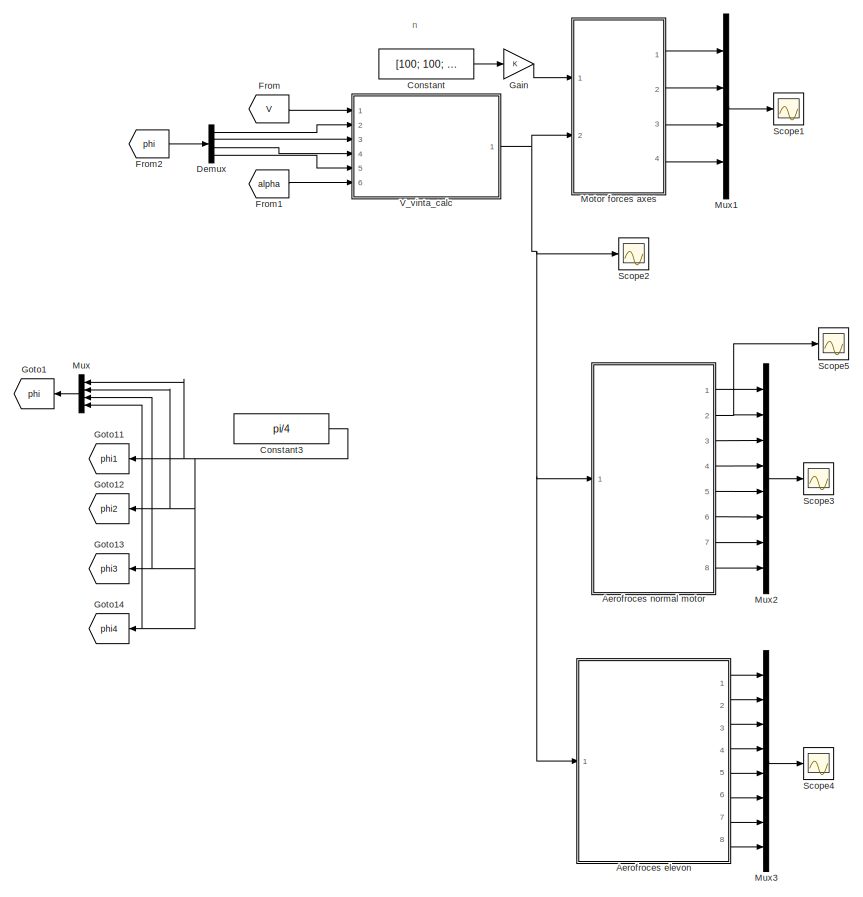
[diagram: root canvas - part 1/2, left side, full height]
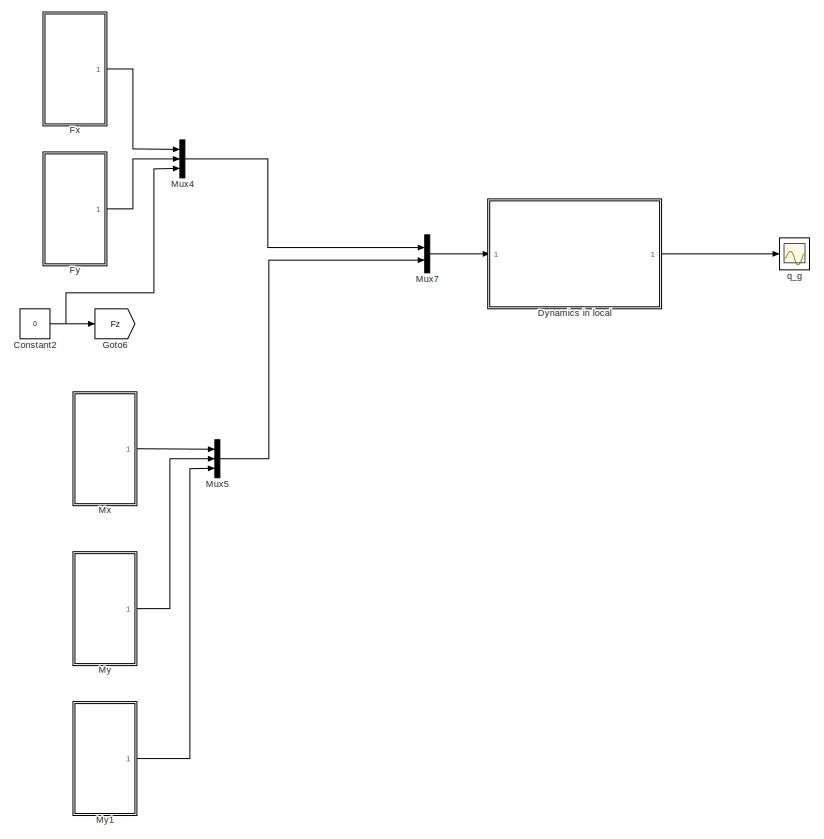
[diagram: root canvas - part 2/2, right side, full height]
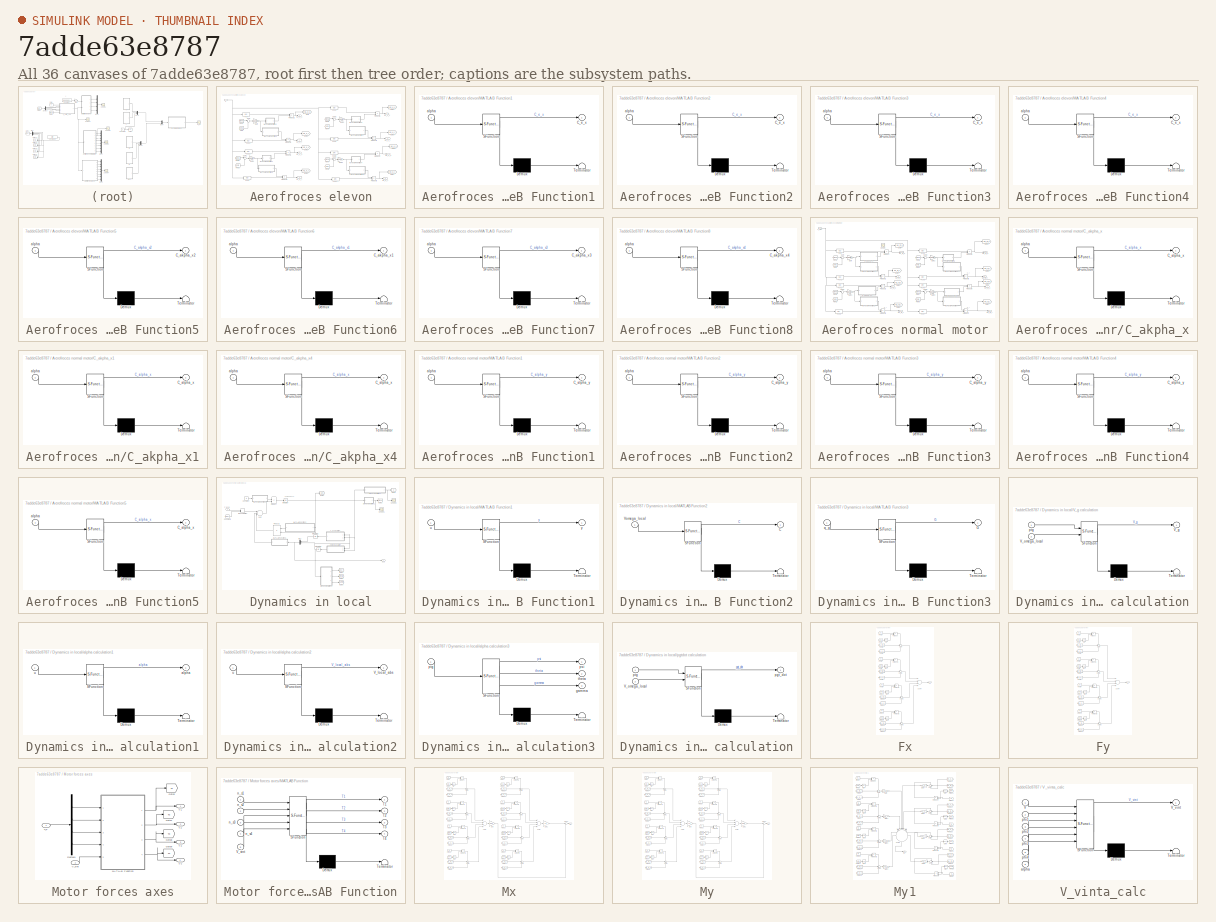
[diagram: thumbnail index - all 36 canvases of the model, root first then tree order]
MODEL slx_7adde63e8787
KIND model
CONFIG AbsTol = auto
CONFIG EnableMultiTasking = off
CONFIG FixedStep = auto
CONFIG MaxStep = auto
CONFIG MinStep = auto
CONFIG RelTol = 1e-3
CONFIG SampleTimeConstraint = Unconstrained
CONFIG Solver = ode45
CONFIG SolverName = ode45
CONFIG StartTime = 0.0
CONFIG StopTime = 10
BLOCK [SubSystem] Aerofroces elevon
  Ports = [1, 8]
  RequestExecContextInheritance = off
  Variant = off
BLOCK [Fcn] Aerofroces elevon/Fcn
  Expr = u(1)
BLOCK [Fcn] Aerofroces elevon/Fcn1
  Expr = u(1)
BLOCK [Fcn] Aerofroces elevon/Fcn2
  Expr = u(2)
BLOCK [Fcn] Aerofroces elevon/Fcn3
  Expr = u(2)
BLOCK [Fcn] Aerofroces elevon/Fcn4
  Expr = u(3)
BLOCK [Fcn] Aerofroces elevon/Fcn5
  Expr = u(3)
BLOCK [Fcn] Aerofroces elevon/Fcn6
  Expr = u(4)
BLOCK [Fcn] Aerofroces elevon/Fcn7
  Expr = u(4)
BLOCK [From] Aerofroces elevon/From
  GotoTag = phi1
  TagVisibility = global
BLOCK [From] Aerofroces elevon/From1
  GotoTag = phi2
  TagVisibility = global
BLOCK [From] Aerofroces elevon/From2
  GotoTag = alpha
  TagVisibility = global
BLOCK [From] Aerofroces elevon/From3
  GotoTag = alpha
  TagVisibility = global
BLOCK [From] Aerofroces elevon/From4
  GotoTag = phi3
  TagVisibility = global
BLOCK [From] Aerofroces elevon/From5
  GotoTag = alpha
  TagVisibility = global
BLOCK [From] Aerofroces elevon/From6
  GotoTag = phi4
  TagVisibility = global
BLOCK [From] Aerofroces elevon/From7
  GotoTag = alpha
  TagVisibility = global
BLOCK [Gain] Aerofroces elevon/Gain
  Gain = 180/pi
  OutDataTypeStr = Inherit: Inherit via internal rule
  ParamDataTypeStr = Inherit: Inherit via internal rule
  SaturateOnIntegerOverflow = off
BLOCK [Gain] Aerofroces elevon/Gain1
  Gain = 180/pi
  OutDataTypeStr = Inherit: Inherit via internal rule
  ParamDataTypeStr = Inherit: Inherit via internal rule
  SaturateOnIntegerOverflow = off
BLOCK [Gain] Aerofroces elevon/Gain2
  Gain = 180/pi
  OutDataTypeStr = Inherit: Inherit via internal rule
  ParamDataTypeStr = Inherit: Inherit via internal rule
  SaturateOnIntegerOverflow = off
BLOCK [Gain] Aerofroces elevon/Gain3
  Gain = 180/pi
  OutDataTypeStr = Inherit: Inherit via internal rule
  ParamDataTypeStr = Inherit: Inherit via internal rule
  SaturateOnIntegerOverflow = off
BLOCK [Goto] Aerofroces elevon/Goto
  GotoTag = N1_e_x
  TagVisibility = global
BLOCK [Goto] Aerofroces elevon/Goto1
  GotoTag = N1_e_y
  TagVisibility = global
BLOCK [Goto] Aerofroces elevon/Goto2
  GotoTag = N2_e_x
  TagVisibility = global
BLOCK [Goto] Aerofroces elevon/Goto3
  GotoTag = N2_e_y
  TagVisibility = global
BLOCK [Goto] Aerofroces elevon/Goto4
  GotoTag = N3_e_x
  TagVisibility = global
BLOCK [Goto] Aerofroces elevon/Goto5
  GotoTag = N3_e_y
  TagVisibility = global
BLOCK [Goto] Aerofroces elevon/Goto6
  GotoTag = N4_e_x
  TagVisibility = global
BLOCK [Goto] Aerofroces elevon/Goto7
  GotoTag = N4_e_y
  TagVisibility = global
BLOCK [SubSystem] Aerofroces elevon/MATLAB Function1
  ErrorFcn = Stateflow.Translate.translate
  PermitHierarchicalResolution = ExplicitOnly
  Ports = [1, 1]
  RequestExecContextInheritance = off
  SFBlockType = MATLAB Function
  TreatAsAtomicUnit = on
  Variant = off
BLOCK [Demux] Aerofroces elevon/MATLAB Function1/ Demux 
  Outputs = 1
  Ports = [1, 1]
BLOCK [S-Function] Aerofroces elevon/MATLAB Function1/ SFunction 
  EnableBusSupport = on
  FunctionName = sf_sfun
  PortCounts = [1 2]
  Ports = [1, 2]
  SFcnIsStateOwnerBlock = off
  SFunctionDeploymentMode = off
  Tag = Stateflow S-Function Test_openloop 10
BLOCK [Terminator] Aerofroces elevon/MATLAB Function1/ Terminator 
BLOCK [Outport] Aerofroces elevon/MATLAB Function1/C_e_x
  IconDisplay = Port number
BLOCK [Inport] Aerofroces elevon/MATLAB Function1/alpha
  IconDisplay = Port number
BLOCK [SubSystem] Aerofroces elevon/MATLAB Function2
  ErrorFcn = Stateflow.Translate.translate
  PermitHierarchicalResolution = ExplicitOnly
  Ports = [1, 1]
  RequestExecContextInheritance = off
  SFBlockType = MATLAB Function
  TreatAsAtomicUnit = on
  Variant = off
BLOCK [Demux] Aerofroces elevon/MATLAB Function2/ Demux 
  Outputs = 1
  Ports = [1, 1]
BLOCK [S-Function] Aerofroces elevon/MATLAB Function2/ SFunction 
  EnableBusSupport = on
  FunctionName = sf_sfun
  PortCounts = [1 2]
  Ports = [1, 2]
  SFcnIsStateOwnerBlock = off
  SFunctionDeploymentMode = off
  Tag = Stateflow S-Function Test_openloop 14
BLOCK [Terminator] Aerofroces elevon/MATLAB Function2/ Terminator 
BLOCK [Outport] Aerofroces elevon/MATLAB Function2/C_e_x
  IconDisplay = Port number
BLOCK [Inport] Aerofroces elevon/MATLAB Function2/alpha
  IconDisplay = Port number
BLOCK [SubSystem] Aerofroces elevon/MATLAB Function3
  ErrorFcn = Stateflow.Translate.translate
  PermitHierarchicalResolution = ExplicitOnly
  Ports = [1, 1]
  RequestExecContextInheritance = off
  SFBlockType = MATLAB Function
  TreatAsAtomicUnit = on
  Variant = off
BLOCK [Demux] Aerofroces elevon/MATLAB Function3/ Demux 
  Outputs = 1
  Ports = [1, 1]
BLOCK [S-Function] Aerofroces elevon/MATLAB Function3/ SFunction 
  EnableBusSupport = on
  FunctionName = sf_sfun
  PortCounts = [1 2]
  Ports = [1, 2]
  SFcnIsStateOwnerBlock = off
  SFunctionDeploymentMode = off
  Tag = Stateflow S-Function Test_openloop 13
BLOCK [Terminator] Aerofroces elevon/MATLAB Function3/ Terminator 
BLOCK [Outport] Aerofroces elevon/MATLAB Function3/C_e_x
  IconDisplay = Port number
BLOCK [Inport] Aerofroces elevon/MATLAB Function3/alpha
  IconDisplay = Port number
BLOCK [SubSystem] Aerofroces elevon/MATLAB Function4
  ErrorFcn = Stateflow.Translate.translate
  PermitHierarchicalResolution = ExplicitOnly
  Ports = [1, 1]
  RequestExecContextInheritance = off
  SFBlockType = MATLAB Function
  TreatAsAtomicUnit = on
  Variant = off
BLOCK [Demux] Aerofroces elevon/MATLAB Function4/ Demux 
  Outputs = 1
  Ports = [1, 1]
BLOCK [S-Function] Aerofroces elevon/MATLAB Function4/ SFunction 
  EnableBusSupport = on
  FunctionName = sf_sfun
  PortCounts = [1 2]
  Ports = [1, 2]
  SFcnIsStateOwnerBlock = off
  SFunctionDeploymentMode = off
  Tag = Stateflow S-Function Test_openloop 15
BLOCK [Terminator] Aerofroces elevon/MATLAB Function4/ Terminator 
BLOCK [Outport] Aerofroces elevon/MATLAB Function4/C_e_x
  IconDisplay = Port number
BLOCK [Inport] Aerofroces elevon/MATLAB Function4/alpha
  IconDisplay = Port number
BLOCK [SubSystem] Aerofroces elevon/MATLAB Function5
  ErrorFcn = Stateflow.Translate.translate
  PermitHierarchicalResolution = ExplicitOnly
  Ports = [1, 1]
  RequestExecContextInheritance = off
  SFBlockType = MATLAB Function
  TreatAsAtomicUnit = on
  Variant = off
BLOCK [Demux] Aerofroces elevon/MATLAB Function5/ Demux 
  Outputs = 1
  Ports = [1, 1]
BLOCK [S-Function] Aerofroces elevon/MATLAB Function5/ SFunction 
  EnableBusSupport = on
  FunctionName = sf_sfun
  PortCounts = [1 2]
  Ports = [1, 2]
  SFcnIsStateOwnerBlock = off
  SFunctionDeploymentMode = off
  Tag = Stateflow S-Function Test_openloop 21
BLOCK [Terminator] Aerofroces elevon/MATLAB Function5/ Terminator 
BLOCK [Outport] Aerofroces elevon/MATLAB Function5/C_akpha_x2
  IconDisplay = Port number
BLOCK [Inport] Aerofroces elevon/MATLAB Function5/alpha
  IconDisplay = Port number
BLOCK [SubSystem] Aerofroces elevon/MATLAB Function6
  ErrorFcn = Stateflow.Translate.translate
  PermitHierarchicalResolution = ExplicitOnly
  Ports = [1, 1]
  RequestExecContextInheritance = off
  SFBlockType = MATLAB Function
  TreatAsAtomicUnit = on
  Variant = off
BLOCK [Demux] Aerofroces elevon/MATLAB Function6/ Demux 
  Outputs = 1
  Ports = [1, 1]
BLOCK [S-Function] Aerofroces elevon/MATLAB Function6/ SFunction 
  EnableBusSupport = on
  FunctionName = sf_sfun
  PortCounts = [1 2]
  Ports = [1, 2]
  SFcnIsStateOwnerBlock = off
  SFunctionDeploymentMode = off
  Tag = Stateflow S-Function Test_openloop 22
BLOCK [Terminator] Aerofroces elevon/MATLAB Function6/ Terminator 
BLOCK [Outport] Aerofroces elevon/MATLAB Function6/C_akpha_x1
  IconDisplay = Port number
BLOCK [Inport] Aerofroces elevon/MATLAB Function6/alpha
  IconDisplay = Port number
BLOCK [SubSystem] Aerofroces elevon/MATLAB Function7
  ErrorFcn = Stateflow.Translate.translate
  PermitHierarchicalResolution = ExplicitOnly
  Ports = [1, 1]
  RequestExecContextInheritance = off
  SFBlockType = MATLAB Function
  TreatAsAtomicUnit = on
  Variant = off
BLOCK [Demux] Aerofroces elevon/MATLAB Function7/ Demux 
  Outputs = 1
  Ports = [1, 1]
BLOCK [S-Function] Aerofroces elevon/MATLAB Function7/ SFunction 
  EnableBusSupport = on
  FunctionName = sf_sfun
  PortCounts = [1 2]
  Ports = [1, 2]
  SFcnIsStateOwnerBlock = off
  SFunctionDeploymentMode = off
  Tag = Stateflow S-Function Test_openloop 23
BLOCK [Terminator] Aerofroces elevon/MATLAB Function7/ Terminator 
BLOCK [Outport] Aerofroces elevon/MATLAB Function7/C_akpha_x3
  IconDisplay = Port number
BLOCK [Inport] Aerofroces elevon/MATLAB Function7/alpha
  IconDisplay = Port number
BLOCK [SubSystem] Aerofroces elevon/MATLAB Function8
  ErrorFcn = Stateflow.Translate.translate
  PermitHierarchicalResolution = ExplicitOnly
  Ports = [1, 1]
  RequestExecContextInheritance = off
  SFBlockType = MATLAB Function
  TreatAsAtomicUnit = on
  Variant = off
BLOCK [Demux] Aerofroces elevon/MATLAB Function8/ Demux 
  Outputs = 1
  Ports = [1, 1]
BLOCK [S-Function] Aerofroces elevon/MATLAB Function8/ SFunction 
  EnableBusSupport = on
  FunctionName = sf_sfun
  PortCounts = [1 2]
  Ports = [1, 2]
  SFcnIsStateOwnerBlock = off
  SFunctionDeploymentMode = off
  Tag = Stateflow S-Function Test_openloop 24
BLOCK [Terminator] Aerofroces elevon/MATLAB Function8/ Terminator 
BLOCK [Outport] Aerofroces elevon/MATLAB Function8/C_akpha_x4
  IconDisplay = Port number
BLOCK [Inport] Aerofroces elevon/MATLAB Function8/alpha
  IconDisplay = Port number
BLOCK [Outport] Aerofroces elevon/N1_e_x
  IconDisplay = Port number
BLOCK [Outport] Aerofroces elevon/N1_e_y
  IconDisplay = Port number
  Port = 2
BLOCK [Outport] Aerofroces elevon/N2_e_x
  IconDisplay = Port number
  Port = 3
BLOCK [Outport] Aerofroces elevon/N2_e_y
  IconDisplay = Port number
  Port = 4
BLOCK [Outport] Aerofroces elevon/N3_e_x
  IconDisplay = Port number
  Port = 5
BLOCK [Outport] Aerofroces elevon/N3_e_y
  IconDisplay = Port number
  Port = 6
BLOCK [Outport] Aerofroces elevon/N4_e_x
  IconDisplay = Port number
  Port = 7
BLOCK [Outport] Aerofroces elevon/N4_e_y
  IconDisplay = Port number
  Port = 8
BLOCK [Product] Aerofroces elevon/Product1
  InputSameDT = off
  OutDataTypeStr = Inherit: Inherit via internal rule
  Ports = [2, 1]
  RndMeth = Floor
  SaturateOnIntegerOverflow = off
BLOCK [Product] Aerofroces elevon/Product2
  InputSameDT = off
  OutDataTypeStr = Inherit: Inherit via internal rule
  Ports = [2, 1]
  RndMeth = Floor
  SaturateOnIntegerOverflow = off
BLOCK [Product] Aerofroces elevon/Product3
  InputSameDT = off
  OutDataTypeStr = Inherit: Inherit via internal rule
  Ports = [2, 1]
  RndMeth = Floor
  SaturateOnIntegerOverflow = off
BLOCK [Product] Aerofroces elevon/Product4
  InputSameDT = off
  OutDataTypeStr = Inherit: Inherit via internal rule
  Ports = [2, 1]
  RndMeth = Floor
  SaturateOnIntegerOverflow = off
BLOCK [Product] Aerofroces elevon/Product5
  InputSameDT = off
  OutDataTypeStr = Inherit: Inherit via internal rule
  Ports = [2, 1]
  RndMeth = Floor
  SaturateOnIntegerOverflow = off
BLOCK [Product] Aerofroces elevon/Product6
  InputSameDT = off
  OutDataTypeStr = Inherit: Inherit via internal rule
  Ports = [2, 1]
  RndMeth = Floor
  SaturateOnIntegerOverflow = off
BLOCK [Product] Aerofroces elevon/Product7
  InputSameDT = off
  OutDataTypeStr = Inherit: Inherit via internal rule
  Ports = [2, 1]
  RndMeth = Floor
  SaturateOnIntegerOverflow = off
BLOCK [Product] Aerofroces elevon/Product8
  InputSameDT = off
  OutDataTypeStr = Inherit: Inherit via internal rule
  Ports = [2, 1]
  RndMeth = Floor
  SaturateOnIntegerOverflow = off
BLOCK [Sum] Aerofroces elevon/Sum
  IconShape = round
  InputSameDT = off
  Inputs = |-+
  OutDataTypeStr = Inherit: Inherit via internal rule
  Ports = [2, 1]
  SaturateOnIntegerOverflow = off
BLOCK [Sum] Aerofroces elevon/Sum1
  IconShape = round
  InputSameDT = off
  Inputs = |-+
  OutDataTypeStr = Inherit: Inherit via internal rule
  Ports = [2, 1]
  SaturateOnIntegerOverflow = off
BLOCK [Sum] Aerofroces elevon/Sum2
  IconShape = round
  InputSameDT = off
  Inputs = |-+
  OutDataTypeStr = Inherit: Inherit via internal rule
  Ports = [2, 1]
  SaturateOnIntegerOverflow = off
BLOCK [Sum] Aerofroces elevon/Sum3
  IconShape = round
  InputSameDT = off
  Inputs = |-+
  OutDataTypeStr = Inherit: Inherit via internal rule
  Ports = [2, 1]
  SaturateOnIntegerOverflow = off
BLOCK [Inport] Aerofroces elevon/V
  IconDisplay = Port number
BLOCK [SubSystem] Aerofroces normal motor
  Ports = [1, 8]
  RequestExecContextInheritance = off
  Variant = off
BLOCK [SubSystem] Aerofroces normal motor/C_akpha_x
  ErrorFcn = Stateflow.Translate.translate
  PermitHierarchicalResolution = ExplicitOnly
  Ports = [1, 1]
  RequestExecContextInheritance = off
  SFBlockType = MATLAB Function
  TreatAsAtomicUnit = on
  Variant = off
BLOCK [Demux] Aerofroces normal motor/C_akpha_x/ Demux 
  Outputs = 1
  Ports = [1, 1]
BLOCK [S-Function] Aerofroces normal motor/C_akpha_x/ SFunction 
  EnableBusSupport = on
  FunctionName = sf_sfun
  PortCounts = [1 2]
  Ports = [1, 2]
  SFcnIsStateOwnerBlock = off
  SFunctionDeploymentMode = off
  Tag = Stateflow S-Function Test_openloop 17
BLOCK [Terminator] Aerofroces normal motor/C_akpha_x/ Terminator 
BLOCK [Outport] Aerofroces normal motor/C_akpha_x/C_alpha_x
  IconDisplay = Port number
BLOCK [Inport] Aerofroces normal motor/C_akpha_x/alpha
  IconDisplay = Port number
BLOCK [SubSystem] Aerofroces normal motor/C_akpha_x1
  ErrorFcn = Stateflow.Translate.translate
  PermitHierarchicalResolution = ExplicitOnly
  Ports = [1, 1]
  RequestExecContextInheritance = off
  SFBlockType = MATLAB Function
  TreatAsAtomicUnit = on
  Variant = off
BLOCK [Demux] Aerofroces normal motor/C_akpha_x1/ Demux 
  Outputs = 1
  Ports = [1, 1]
BLOCK [S-Function] Aerofroces normal motor/C_akpha_x1/ SFunction 
  EnableBusSupport = on
  FunctionName = sf_sfun
  PortCounts = [1 2]
  Ports = [1, 2]
  SFcnIsStateOwnerBlock = off
  SFunctionDeploymentMode = off
  Tag = Stateflow S-Function Test_openloop 20
BLOCK [Terminator] Aerofroces normal motor/C_akpha_x1/ Terminator 
BLOCK [Outport] Aerofroces normal motor/C_akpha_x1/C_alpha_x
  IconDisplay = Port number
BLOCK [Inport] Aerofroces normal motor/C_akpha_x1/alpha
  IconDisplay = Port number
BLOCK [SubSystem] Aerofroces normal motor/C_akpha_x4
  ErrorFcn = Stateflow.Translate.translate
  PermitHierarchicalResolution = ExplicitOnly
  Ports = [1, 1]
  RequestExecContextInheritance = off
  SFBlockType = MATLAB Function
  TreatAsAtomicUnit = on
  Variant = off
BLOCK [Demux] Aerofroces normal motor/C_akpha_x4/ Demux 
  Outputs = 1
  Ports = [1, 1]
BLOCK [S-Function] Aerofroces normal motor/C_akpha_x4/ SFunction 
  EnableBusSupport = on
  FunctionName = sf_sfun
  PortCounts = [1 2]
  Ports = [1, 2]
  SFcnIsStateOwnerBlock = off
  SFunctionDeploymentMode = off
  Tag = Stateflow S-Function Test_openloop 18
BLOCK [Terminator] Aerofroces normal motor/C_akpha_x4/ Terminator 
BLOCK [Outport] Aerofroces normal motor/C_akpha_x4/C_alpha_x
  IconDisplay = Port number
BLOCK [Inport] Aerofroces normal motor/C_akpha_x4/alpha
  IconDisplay = Port number
BLOCK [Fcn] Aerofroces normal motor/Fcn
  Expr = u(1)
BLOCK [Fcn] Aerofroces normal motor/Fcn1
  Expr = u(1)
BLOCK [Fcn] Aerofroces normal motor/Fcn2
  Expr = u(2)
BLOCK [Fcn] Aerofroces normal motor/Fcn3
  Expr = u(2)
BLOCK [Fcn] Aerofroces normal motor/Fcn4
  Expr = u(3)
BLOCK [Fcn] Aerofroces normal motor/Fcn5
  Expr = u(3)
BLOCK [Fcn] Aerofroces normal motor/Fcn6
  Expr = u(4)
BLOCK [Fcn] Aerofroces normal motor/Fcn7
  Expr = u(4)
BLOCK [From] Aerofroces normal motor/From
  GotoTag = phi1
  TagVisibility = global
BLOCK [From] Aerofroces normal motor/From1
  GotoTag = alpha
  TagVisibility = global
BLOCK [From] Aerofroces normal motor/From2
  GotoTag = phi2
  TagVisibility = global
BLOCK [From] Aerofroces normal motor/From3
  GotoTag = alpha
  TagVisibility = global
BLOCK [From] Aerofroces normal motor/From4
  GotoTag = phi3
  TagVisibility = global
BLOCK [From] Aerofroces normal motor/From5
  GotoTag = alpha
  TagVisibility = global
BLOCK [From] Aerofroces normal motor/From6
  GotoTag = phi4
  TagVisibility = global
BLOCK [From] Aerofroces normal motor/From7
  GotoTag = alpha
  TagVisibility = global
BLOCK [Gain] Aerofroces normal motor/Gain
  Gain = 180/pi
  OutDataTypeStr = Inherit: Inherit via internal rule
  ParamDataTypeStr = Inherit: Inherit via internal rule
  SaturateOnIntegerOverflow = off
BLOCK [Gain] Aerofroces normal motor/Gain1
  Gain = 180/pi
  OutDataTypeStr = Inherit: Inherit via internal rule
  ParamDataTypeStr = Inherit: Inherit via internal rule
  SaturateOnIntegerOverflow = off
BLOCK [Gain] Aerofroces normal motor/Gain2
  Gain = 180/pi
  OutDataTypeStr = Inherit: Inherit via internal rule
  ParamDataTypeStr = Inherit: Inherit via internal rule
  SaturateOnIntegerOverflow = off
BLOCK [Gain] Aerofroces normal motor/Gain3
  Gain = 180/pi
  OutDataTypeStr = Inherit: Inherit via internal rule
  ParamDataTypeStr = Inherit: Inherit via internal rule
  SaturateOnIntegerOverflow = off
BLOCK [Goto] Aerofroces normal motor/Goto
  GotoTag = N1_m_x
  TagVisibility = global
BLOCK [Goto] Aerofroces normal motor/Goto1
  GotoTag = N2_m_x
  TagVisibility = global
BLOCK [Goto] Aerofroces normal motor/Goto2
  GotoTag = N3_m_x
  TagVisibility = global
BLOCK [Goto] Aerofroces normal motor/Goto3
  GotoTag = N4_m_x
  TagVisibility = global
BLOCK [Goto] Aerofroces normal motor/Goto4
  GotoTag = N1_m_y
  TagVisibility = global
BLOCK [Goto] Aerofroces normal motor/Goto5
  GotoTag = N2_m_y
  TagVisibility = global
BLOCK [Goto] Aerofroces normal motor/Goto6
  GotoTag = N3_m_y
  TagVisibility = global
BLOCK [Goto] Aerofroces normal motor/Goto7
  GotoTag = N4_m_y
  TagVisibility = global
BLOCK [SubSystem] Aerofroces normal motor/MATLAB Function1
  ErrorFcn = Stateflow.Translate.translate
  PermitHierarchicalResolution = ExplicitOnly
  Ports = [1, 1]
  RequestExecContextInheritance = off
  SFBlockType = MATLAB Function
  TreatAsAtomicUnit = on
  Variant = off
BLOCK [Demux] Aerofroces normal motor/MATLAB Function1/ Demux 
  Outputs = 1
  Ports = [1, 1]
BLOCK [S-Function] Aerofroces normal motor/MATLAB Function1/ SFunction 
  EnableBusSupport = on
  FunctionName = sf_sfun
  PortCounts = [1 2]
  Ports = [1, 2]
  SFcnIsStateOwnerBlock = off
  SFunctionDeploymentMode = off
  Tag = Stateflow S-Function Test_openloop 11
BLOCK [Terminator] Aerofroces normal motor/MATLAB Function1/ Terminator 
BLOCK [Outport] Aerofroces normal motor/MATLAB Function1/C_alpha_y
  IconDisplay = Port number
BLOCK [Inport] Aerofroces normal motor/MATLAB Function1/alpha
  IconDisplay = Port number
BLOCK [SubSystem] Aerofroces normal motor/MATLAB Function2
  ErrorFcn = Stateflow.Translate.translate
  PermitHierarchicalResolution = ExplicitOnly
  Ports = [1, 1]
  RequestExecContextInheritance = off
  SFBlockType = MATLAB Function
  TreatAsAtomicUnit = on
  Variant = off
BLOCK [Demux] Aerofroces normal motor/MATLAB Function2/ Demux 
  Outputs = 1
  Ports = [1, 1]
BLOCK [S-Function] Aerofroces normal motor/MATLAB Function2/ SFunction 
  EnableBusSupport = on
  FunctionName = sf_sfun
  PortCounts = [1 2]
  Ports = [1, 2]
  SFcnIsStateOwnerBlock = off
  SFunctionDeploymentMode = off
  Tag = Stateflow S-Function Test_openloop 12
BLOCK [Terminator] Aerofroces normal motor/MATLAB Function2/ Terminator 
BLOCK [Outport] Aerofroces normal motor/MATLAB Function2/C_alpha_y
  IconDisplay = Port number
BLOCK [Inport] Aerofroces normal motor/MATLAB Function2/alpha
  IconDisplay = Port number
BLOCK [SubSystem] Aerofroces normal motor/MATLAB Function3
  ErrorFcn = Stateflow.Translate.translate
  PermitHierarchicalResolution = ExplicitOnly
  Ports = [1, 1]
  RequestExecContextInheritance = off
  SFBlockType = MATLAB Function
  TreatAsAtomicUnit = on
  Variant = off
BLOCK [Demux] Aerofroces normal motor/MATLAB Function3/ Demux 
  Outputs = 1
  Ports = [1, 1]
BLOCK [S-Function] Aerofroces normal motor/MATLAB Function3/ SFunction 
  EnableBusSupport = on
  FunctionName = sf_sfun
  PortCounts = [1 2]
  Ports = [1, 2]
  SFcnIsStateOwnerBlock = off
  SFunctionDeploymentMode = off
  Tag = Stateflow S-Function Test_openloop 16
BLOCK [Terminator] Aerofroces normal motor/MATLAB Function3/ Terminator 
BLOCK [Outport] Aerofroces normal motor/MATLAB Function3/C_alpha_y
  IconDisplay = Port number
BLOCK [Inport] Aerofroces normal motor/MATLAB Function3/alpha
  IconDisplay = Port number
BLOCK [SubSystem] Aerofroces normal motor/MATLAB Function4
  ErrorFcn = Stateflow.Translate.translate
  PermitHierarchicalResolution = ExplicitOnly
  Ports = [1, 1]
  RequestExecContextInheritance = off
  SFBlockType = MATLAB Function
  TreatAsAtomicUnit = on
  Variant = off
BLOCK [Demux] Aerofroces normal motor/MATLAB Function4/ Demux 
  Outputs = 1
  Ports = [1, 1]
BLOCK [S-Function] Aerofroces normal motor/MATLAB Function4/ SFunction 
  EnableBusSupport = on
  FunctionName = sf_sfun
  PortCounts = [1 2]
  Ports = [1, 2]
  SFcnIsStateOwnerBlock = off
  SFunctionDeploymentMode = off
  Tag = Stateflow S-Function Test_openloop 19
BLOCK [Terminator] Aerofroces normal motor/MATLAB Function4/ Terminator 
BLOCK [Outport] Aerofroces normal motor/MATLAB Function4/C_alpha_y
  IconDisplay = Port number
BLOCK [Inport] Aerofroces normal motor/MATLAB Function4/alpha
  IconDisplay = Port number
BLOCK [SubSystem] Aerofroces normal motor/MATLAB Function5
  ErrorFcn = Stateflow.Translate.translate
  PermitHierarchicalResolution = ExplicitOnly
  Ports = [1, 1]
  RequestExecContextInheritance = off
  SFBlockType = MATLAB Function
  TreatAsAtomicUnit = on
  Variant = off
BLOCK [Demux] Aerofroces normal motor/MATLAB Function5/ Demux 
  Outputs = 1
  Ports = [1, 1]
BLOCK [S-Function] Aerofroces normal motor/MATLAB Function5/ SFunction 
  EnableBusSupport = on
  FunctionName = sf_sfun
  PortCounts = [1 2]
  Ports = [1, 2]
  SFcnIsStateOwnerBlock = off
  SFunctionDeploymentMode = off
  Tag = Stateflow S-Function Test_openloop 25
BLOCK [Terminator] Aerofroces normal motor/MATLAB Function5/ Terminator 
BLOCK [Outport] Aerofroces normal motor/MATLAB Function5/C_alpha_x
  IconDisplay = Port number
BLOCK [Inport] Aerofroces normal motor/MATLAB Function5/alpha
  IconDisplay = Port number
BLOCK [Outport] Aerofroces normal motor/N1_m_x
  IconDisplay = Port number
BLOCK [Outport] Aerofroces normal motor/N1_m_y
  IconDisplay = Port number
  Port = 2
BLOCK [Outport] Aerofroces normal motor/N2_m_x
  IconDisplay = Port number
  Port = 3
BLOCK [Outport] Aerofroces normal motor/N2_m_y
  IconDisplay = Port number
  Port = 4
BLOCK [Outport] Aerofroces normal motor/N3_m_x
  IconDisplay = Port number
  Port = 5
BLOCK [Outport] Aerofroces normal motor/N3_m_y
  IconDisplay = Port number
  Port = 6
BLOCK [Outport] Aerofroces normal motor/N4_m_x
  IconDisplay = Port number
  Port = 7
BLOCK [Outport] Aerofroces normal motor/N4_m_y
  IconDisplay = Port number
  Port = 8
BLOCK [Product] Aerofroces normal motor/Product
  InputSameDT = off
  OutDataTypeStr = Inherit: Inherit via internal rule
  Ports = [2, 1]
  RndMeth = Floor
  SaturateOnIntegerOverflow = off
BLOCK [Product] Aerofroces normal motor/Product1
  InputSameDT = off
  OutDataTypeStr = Inherit: Inherit via internal rule
  Ports = [2, 1]
  RndMeth = Floor
  SaturateOnIntegerOverflow = off
BLOCK [Product] Aerofroces normal motor/Product2
  InputSameDT = off
  OutDataTypeStr = Inherit: Inherit via internal rule
  Ports = [2, 1]
  RndMeth = Floor
  SaturateOnIntegerOverflow = off
BLOCK [Product] Aerofroces normal motor/Product3
  InputSameDT = off
  OutDataTypeStr = Inherit: Inherit via internal rule
  Ports = [2, 1]
  RndMeth = Floor
  SaturateOnIntegerOverflow = off
BLOCK [Product] Aerofroces normal motor/Product4
  InputSameDT = off
  OutDataTypeStr = Inherit: Inherit via internal rule
  Ports = [2, 1]
  RndMeth = Floor
  SaturateOnIntegerOverflow = off
BLOCK [Product] Aerofroces normal motor/Product5
  InputSameDT = off
  OutDataTypeStr = Inherit: Inherit via internal rule
  Ports = [2, 1]
  RndMeth = Floor
  SaturateOnIntegerOverflow = off
BLOCK [Product] Aerofroces normal motor/Product6
  InputSameDT = off
  OutDataTypeStr = Inherit: Inherit via internal rule
  Ports = [2, 1]
  RndMeth = Floor
  SaturateOnIntegerOverflow = off
BLOCK [Product] Aerofroces normal motor/Product7
  InputSameDT = off
  OutDataTypeStr = Inherit: Inherit via internal rule
  Ports = [2, 1]
  RndMeth = Floor
  SaturateOnIntegerOverflow = off
BLOCK [Scope] Aerofroces normal motor/Scope
  NumInputPorts = 1
  Ports = [1]
  ScopeSpecificationString = C++SS(StrPVP('Location','[188, 365, 512, 604]'),StrPVP('Open','off'),MxPVP('AxesTitles',53,'struct(''axes1'',''%<SignalLabel>'')'),StrPVP('ShowLegends','off'),StrPVP('YMin','-1.00000'),StrPVP('YMax','1.00000'),StrPVP('SaveName','ScopeData4'),StrPVP('DataFormat','StructureWithTime'),StrPVP('LimitDataPoints','off'),StrPVP('Decimation','1'),StrPVP('BlockParamSampleInput','off'))
BLOCK [Sum] Aerofroces normal motor/Sum
  IconShape = round
  InputSameDT = off
  Inputs = |-+
  OutDataTypeStr = Inherit: Inherit via internal rule
  Ports = [2, 1]
  SaturateOnIntegerOverflow = off
BLOCK [Sum] Aerofroces normal motor/Sum1
  IconShape = round
  InputSameDT = off
  Inputs = |-+
  OutDataTypeStr = Inherit: Inherit via internal rule
  Ports = [2, 1]
  SaturateOnIntegerOverflow = off
BLOCK [Sum] Aerofroces normal motor/Sum2
  IconShape = round
  InputSameDT = off
  Inputs = |-+
  OutDataTypeStr = Inherit: Inherit via internal rule
  Ports = [2, 1]
  SaturateOnIntegerOverflow = off
BLOCK [Sum] Aerofroces normal motor/Sum3
  IconShape = round
  InputSameDT = off
  Inputs = |-+
  OutDataTypeStr = Inherit: Inherit via internal rule
  Ports = [2, 1]
  SaturateOnIntegerOverflow = off
BLOCK [Inport] Aerofroces normal motor/V_vint
  IconDisplay = Port number
BLOCK [Constant] Constant
  Value = [100; 100; 100; 100]
BLOCK [Constant] Constant2
  Value = 0
BLOCK [Constant] Constant3
  Value = pi/4
BLOCK [Demux] Demux
  DisplayOption = bar
  Ports = [1, 4]
BLOCK [SubSystem] Dynamics in local
  Ports = [1, 1]
  RequestExecContextInheritance = off
  Variant = off
BLOCK [Constant] Dynamics in local/Constant
  Value = M
BLOCK [Constant] Dynamics in local/Constant1
  Value = [1; m*9.81; 0; 0; 0; 0]
BLOCK [Inport] Dynamics in local/F_local
  IconDisplay = Port number
BLOCK [Goto] Dynamics in local/Goto1
  GotoTag = ups
  TagVisibility = global
BLOCK [Goto] Dynamics in local/Goto2
  GotoTag = alpha
  TagVisibility = global
BLOCK [Goto] Dynamics in local/Goto3
  GotoTag = V
  TagVisibility = global
BLOCK [Goto] Dynamics in local/Goto4
  GotoTag = psi
  TagVisibility = global
BLOCK [Goto] Dynamics in local/Goto5
  GotoTag = theta
  TagVisibility = global
BLOCK [Goto] Dynamics in local/Goto6
  GotoTag = gamma
  TagVisibility = global
BLOCK [Integrator] Dynamics in local/Integrator
  Ports = [1, 1]
BLOCK [Integrator] Dynamics in local/Integrator1
  InitialCondition = [0;0;0]
  Ports = [1, 1]
BLOCK [Integrator] Dynamics in local/Integrator2
  InitialCondition = [0;0;0]
  Ports = [1, 1]
BLOCK [SubSystem] Dynamics in local/MATLAB Function1
  ErrorFcn = Stateflow.Translate.translate
  PermitHierarchicalResolution = ExplicitOnly
  Ports = [1, 1]
  RequestExecContextInheritance = off
  SFBlockType = MATLAB Function
  TreatAsAtomicUnit = on
  Variant = off
BLOCK [Demux] Dynamics in local/MATLAB Function1/ Demux 
  Outputs = 1
  Ports = [1, 1]
BLOCK [S-Function] Dynamics in local/MATLAB Function1/ SFunction 
  EnableBusSupport = on
  FunctionName = sf_sfun
  PortCounts = [1 2]
  Ports = [1, 2]
  SFcnIsStateOwnerBlock = off
  SFunctionDeploymentMode = off
  Tag = Stateflow S-Function Test_openloop 1
BLOCK [Terminator] Dynamics in local/MATLAB Function1/ Terminator 
BLOCK [Inport] Dynamics in local/MATLAB Function1/u
  IconDisplay = Port number
BLOCK [Outport] Dynamics in local/MATLAB Function1/y
  IconDisplay = Port number
BLOCK [SubSystem] Dynamics in local/MATLAB Function2
  ErrorFcn = Stateflow.Translate.translate
  PermitHierarchicalResolution = ExplicitOnly
  Ports = [1, 1]
  RequestExecContextInheritance = off
  SFBlockType = MATLAB Function
  TreatAsAtomicUnit = on
  Variant = off
BLOCK [Demux] Dynamics in local/MATLAB Function2/ Demux 
  Outputs = 1
  Ports = [1, 1]
BLOCK [S-Function] Dynamics in local/MATLAB Function2/ SFunction 
  EnableBusSupport = on
  FunctionName = sf_sfun
  Parameters = Ix,Ixy,Iy,Iz,m
  PortCounts = [1 2]
  Ports = [1, 2]
  SFcnIsStateOwnerBlock = off
  SFunctionDeploymentMode = off
  Tag = Stateflow S-Function Test_openloop 3
BLOCK [Terminator] Dynamics in local/MATLAB Function2/ Terminator 
BLOCK [Outport] Dynamics in local/MATLAB Function2/C
  IconDisplay = Port number
BLOCK [Inport] Dynamics in local/MATLAB Function2/Vomega_local
  IconDisplay = Port number
BLOCK [SubSystem] Dynamics in local/MATLAB Function3
  ErrorFcn = Stateflow.Translate.translate
  PermitHierarchicalResolution = ExplicitOnly
  Ports = [1, 1]
  RequestExecContextInheritance = off
  SFBlockType = MATLAB Function
  TreatAsAtomicUnit = on
  Variant = off
BLOCK [Demux] Dynamics in local/MATLAB Function3/ Demux 
  Outputs = 1
  Ports = [1, 1]
BLOCK [S-Function] Dynamics in local/MATLAB Function3/ SFunction 
  EnableBusSupport = on
  FunctionName = sf_sfun
  Parameters = m
  PortCounts = [1 2]
  Ports = [1, 2]
  SFcnIsStateOwnerBlock = off
  SFunctionDeploymentMode = off
  Tag = Stateflow S-Function Test_openloop 4
BLOCK [Terminator] Dynamics in local/MATLAB Function3/ Terminator 
BLOCK [Outport] Dynamics in local/MATLAB Function3/G
  IconDisplay = Port number
BLOCK [Inport] Dynamics in local/MATLAB Function3/q_g
  IconDisplay = Port number
BLOCK [ManualSwitch] Dynamics in local/Manual Switch
BLOCK [Mux] Dynamics in local/Mux
  DisplayOption = bar
  Inputs = 2
  Ports = [2, 1]
BLOCK [Product] Dynamics in local/Product
  InputSameDT = off
  Multiplication = Matrix(*)
  OutDataTypeStr = Inherit: Inherit via internal rule
  Ports = [2, 1]
  RndMeth = Floor
  SaturateOnIntegerOverflow = off
BLOCK [Product] Dynamics in local/Product1
  InputSameDT = off
  Multiplication = Matrix(*)
  OutDataTypeStr = Inherit: Inherit via internal rule
  Ports = [2, 1]
  RndMeth = Floor
  SaturateOnIntegerOverflow = off
BLOCK [Scope] Dynamics in local/Scope1
  NumInputPorts = 1
  Ports = [1]
  ScopeSpecificationString = C++SS(StrPVP('Location','[188, 365, 512, 604]'),StrPVP('Open','off'),StrPVP('ZoomMode','yonly'),MxPVP('AxesTitles',53,'struct(''axes1'',''%<SignalLabel>'')'),MxPVP('ScopeGraphics',56,'struct(''FigureColor'',''[0.5 0.5 0.5]'',''AxesColor'',''[0 0 0]'',''AxesTickColor'',''[1 1 1]'',''LineColors'',''[1 1 0;1 0 1;0 1 1;1 0 0;0 1 0;0 0 1]'',''LineStyles'',''-|-|-|-|-|-'',''LineWidths'',''[0.5 0.5 0.5 0...<+219ch>
BLOCK [Scope] Dynamics in local/Scope2
  NumInputPorts = 1
  Ports = [1]
  ScopeSpecificationString = C++SS(StrPVP('Location','[188, 365, 512, 604]'),StrPVP('Open','off'),MxPVP('AxesTitles',53,'struct(''axes1'',''%<SignalLabel>'')'),StrPVP('ShowLegends','off'),StrPVP('LimitDataPoints','on'),StrPVP('DataFormat','Array'),StrPVP('Decimation','1'),StrPVP('BlockParamSampleInput','off'))  <repeated x3 — deduplicated; at blocks: Scope2, Scope4>
BLOCK [Sum] Dynamics in local/Sum
  InputSameDT = off
  Inputs = +--
  OutDataTypeStr = Inherit: Inherit via internal rule
  Ports = [3, 1]
  SaturateOnIntegerOverflow = off
BLOCK [SubSystem] Dynamics in local/V_g calculation
  ErrorFcn = Stateflow.Translate.translate
  PermitHierarchicalResolution = ExplicitOnly
  Ports = [2, 1]
  RequestExecContextInheritance = off
  SFBlockType = MATLAB Function
  TreatAsAtomicUnit = on
  Variant = off
BLOCK [Demux] Dynamics in local/V_g calculation/ Demux 
  Outputs = 1
  Ports = [1, 1]
BLOCK [S-Function] Dynamics in local/V_g calculation/ SFunction 
  EnableBusSupport = on
  FunctionName = sf_sfun
  PortCounts = [2 2]
  Ports = [2, 2]
  SFcnIsStateOwnerBlock = off
  SFunctionDeploymentMode = off
  Tag = Stateflow S-Function Test_openloop 7
BLOCK [Terminator] Dynamics in local/V_g calculation/ Terminator 
BLOCK [Outport] Dynamics in local/V_g calculation/V_g
  IconDisplay = Port number
BLOCK [Inport] Dynamics in local/V_g calculation/V_omega_local
  IconDisplay = Port number
  Port = 2
BLOCK [Inport] Dynamics in local/V_g calculation/ptg
  IconDisplay = Port number
BLOCK [SubSystem] Dynamics in local/alpha calculation1
  ErrorFcn = Stateflow.Translate.translate
  PermitHierarchicalResolution = ExplicitOnly
  Ports = [1, 1]
  RequestExecContextInheritance = off
  SFBlockType = MATLAB Function
  TreatAsAtomicUnit = on
  Variant = off
BLOCK [Demux] Dynamics in local/alpha calculation1/ Demux 
  Outputs = 1
  Ports = [1, 1]
BLOCK [S-Function] Dynamics in local/alpha calculation1/ SFunction 
  EnableBusSupport = on
  FunctionName = sf_sfun
  PortCounts = [1 2]
  Ports = [1, 2]
  SFcnIsStateOwnerBlock = off
  SFunctionDeploymentMode = off
  Tag = Stateflow S-Function Test_openloop 2
BLOCK [Terminator] Dynamics in local/alpha calculation1/ Terminator 
BLOCK [Outport] Dynamics in local/alpha calculation1/alpha
  IconDisplay = Port number
BLOCK [Inport] Dynamics in local/alpha calculation1/u
  IconDisplay = Port number
BLOCK [SubSystem] Dynamics in local/alpha calculation2
  ErrorFcn = Stateflow.Translate.translate
  PermitHierarchicalResolution = ExplicitOnly
  Ports = [1, 1]
  RequestExecContextInheritance = off
  SFBlockType = MATLAB Function
  TreatAsAtomicUnit = on
  Variant = off
BLOCK [Demux] Dynamics in local/alpha calculation2/ Demux 
  Outputs = 1
  Ports = [1, 1]
BLOCK [S-Function] Dynamics in local/alpha calculation2/ SFunction 
  EnableBusSupport = on
  FunctionName = sf_sfun
  PortCounts = [1 2]
  Ports = [1, 2]
  SFcnIsStateOwnerBlock = off
  SFunctionDeploymentMode = off
  Tag = Stateflow S-Function Test_openloop 8
BLOCK [Terminator] Dynamics in local/alpha calculation2/ Terminator 
BLOCK [Outport] Dynamics in local/alpha calculation2/V_local_abs
  IconDisplay = Port number
BLOCK [Inport] Dynamics in local/alpha calculation2/u
  IconDisplay = Port number
BLOCK [SubSystem] Dynamics in local/alpha calculation3
  ErrorFcn = Stateflow.Translate.translate
  PermitHierarchicalResolution = ExplicitOnly
  Ports = [1, 3]
  RequestExecContextInheritance = off
  SFBlockType = MATLAB Function
  TreatAsAtomicUnit = on
  Variant = off
BLOCK [Demux] Dynamics in local/alpha calculation3/ Demux 
  Outputs = 1
  Ports = [1, 1]
BLOCK [S-Function] Dynamics in local/alpha calculation3/ SFunction 
  EnableBusSupport = on
  FunctionName = sf_sfun
  PortCounts = [1 4]
  Ports = [1, 4]
  SFcnIsStateOwnerBlock = off
  SFunctionDeploymentMode = off
  Tag = Stateflow S-Function Test_openloop 27
BLOCK [Terminator] Dynamics in local/alpha calculation3/ Terminator 
BLOCK [Outport] Dynamics in local/alpha calculation3/gamma
  IconDisplay = Port number
  Port = 3
BLOCK [Outport] Dynamics in local/alpha calculation3/psi
  IconDisplay = Port number
BLOCK [Inport] Dynamics in local/alpha calculation3/ptg
  IconDisplay = Port number
BLOCK [Outport] Dynamics in local/alpha calculation3/theta
  IconDisplay = Port number
  Port = 2
BLOCK [SubSystem] Dynamics in local/pgtdot calculation
  ErrorFcn = Stateflow.Translate.translate
  PermitHierarchicalResolution = ExplicitOnly
  Ports = [2, 1]
  RequestExecContextInheritance = off
  SFBlockType = MATLAB Function
  TreatAsAtomicUnit = on
  Variant = off
BLOCK [Demux] Dynamics in local/pgtdot calculation/ Demux 
  Outputs = 1
  Ports = [1, 1]
BLOCK [S-Function] Dynamics in local/pgtdot calculation/ SFunction 
  EnableBusSupport = on
  FunctionName = sf_sfun
  PortCounts = [2 2]
  Ports = [2, 2]
  SFcnIsStateOwnerBlock = off
  SFunctionDeploymentMode = off
  Tag = Stateflow S-Function Test_openloop 6
BLOCK [Terminator] Dynamics in local/pgtdot calculation/ Terminator 
BLOCK [Inport] Dynamics in local/pgtdot calculation/V_omega_local
  IconDisplay = Port number
  Port = 2
BLOCK [Outport] Dynamics in local/pgtdot calculation/pgt_dot
  IconDisplay = Port number
BLOCK [Inport] Dynamics in local/pgtdot calculation/ptg
  IconDisplay = Port number
BLOCK [Outport] Dynamics in local/q_g
  IconDisplay = Port number
BLOCK [From] From
  GotoTag = V
  TagVisibility = global
BLOCK [From] From1
  GotoTag = alpha
  TagVisibility = global
BLOCK [From] From2
  GotoTag = phi
  TagVisibility = global
BLOCK [SubSystem] Fx
  Ports = [0, 1]
  RequestExecContextInheritance = off
  Variant = off
BLOCK [From] Fx/From1
  GotoTag = T1
  TagVisibility = global
BLOCK [From] Fx/From10
  GotoTag = phi3
  TagVisibility = global
BLOCK [From] Fx/From11
  GotoTag = N3_m_x
  TagVisibility = global
BLOCK [From] Fx/From12
  GotoTag = N3_e_x
  TagVisibility = global
BLOCK [From] Fx/From13
  GotoTag = T4
  TagVisibility = global
BLOCK [From] Fx/From14
  GotoTag = phi4
  TagVisibility = global
BLOCK [From] Fx/From15
  GotoTag = N4_m_x
  TagVisibility = global
BLOCK [From] Fx/From16
  GotoTag = N4_e_x
  TagVisibility = global
BLOCK [From] Fx/From2
  GotoTag = phi1
  TagVisibility = global
BLOCK [From] Fx/From3
  GotoTag = N1_m_x
  TagVisibility = global
BLOCK [From] Fx/From4
  GotoTag = N1_e_x
  TagVisibility = global
BLOCK [From] Fx/From5
  GotoTag = T2
  TagVisibility = global
BLOCK [From] Fx/From6
  GotoTag = phi2
  TagVisibility = global
BLOCK [From] Fx/From7
  GotoTag = N2_m_x
  TagVisibility = global
BLOCK [From] Fx/From8
  GotoTag = N2_e_x
  TagVisibility = global
BLOCK [From] Fx/From9
  GotoTag = T3
  TagVisibility = global
BLOCK [Outport] Fx/Fx
  IconDisplay = Port number
BLOCK [Product] Fx/Product
  InputSameDT = off
  OutDataTypeStr = Inherit: Inherit via internal rule
  Ports = [2, 1]
  RndMeth = Floor
  SaturateOnIntegerOverflow = off
BLOCK [Product] Fx/Product1
  InputSameDT = off
  OutDataTypeStr = Inherit: Inherit via internal rule
  Ports = [2, 1]
  RndMeth = Floor
  SaturateOnIntegerOverflow = off
BLOCK [Product] Fx/Product2
  InputSameDT = off
  OutDataTypeStr = Inherit: Inherit via internal rule
  Ports = [2, 1]
  RndMeth = Floor
  SaturateOnIntegerOverflow = off
BLOCK [Product] Fx/Product3
  InputSameDT = off
  OutDataTypeStr = Inherit: Inherit via internal rule
  Ports = [2, 1]
  RndMeth = Floor
  SaturateOnIntegerOverflow = off
BLOCK [Trigonometry] Fx/Sin
  Ports = [1, 1]
BLOCK [Trigonometry] Fx/Sin1
  Ports = [1, 1]
BLOCK [Trigonometry] Fx/Sin2
  Ports = [1, 1]
BLOCK [Trigonometry] Fx/Sin3
  Ports = [1, 1]
BLOCK [Sum] Fx/Sum
  IconShape = round
  InputSameDT = off
  Inputs = +--
  OutDataTypeStr = Inherit: Inherit via internal rule
  Ports = [3, 1]
  SaturateOnIntegerOverflow = off
BLOCK [Sum] Fx/Sum1
  IconShape = round
  InputSameDT = off
  Inputs = +--
  OutDataTypeStr = Inherit: Inherit via internal rule
  Ports = [3, 1]
  SaturateOnIntegerOverflow = off
BLOCK [Sum] Fx/Sum2
  IconShape = round
  InputSameDT = off
  Inputs = +--
  OutDataTypeStr = Inherit: Inherit via internal rule
  Ports = [3, 1]
  SaturateOnIntegerOverflow = off
BLOCK [Sum] Fx/Sum3
  IconShape = round
  InputSameDT = off
  Inputs = +--
  OutDataTypeStr = Inherit: Inherit via internal rule
  Ports = [3, 1]
  SaturateOnIntegerOverflow = off
BLOCK [Sum] Fx/Sum4
  InputSameDT = off
  Inputs = ++++
  OutDataTypeStr = Inherit: Inherit via internal rule
  Ports = [4, 1]
  SaturateOnIntegerOverflow = off
BLOCK [SubSystem] Fy
  Ports = [0, 1]
  RequestExecContextInheritance = off
  Variant = off
BLOCK [From] Fy/From1
  GotoTag = T1
  TagVisibility = global
BLOCK [From] Fy/From10
  GotoTag = phi3
  TagVisibility = global
BLOCK [From] Fy/From11
  GotoTag = N3_m_y
  TagVisibility = global
BLOCK [From] Fy/From12
  GotoTag = N3_e_y
  TagVisibility = global
BLOCK [From] Fy/From13
  GotoTag = T4
  TagVisibility = global
BLOCK [From] Fy/From14
  GotoTag = phi4
  TagVisibility = global
BLOCK [From] Fy/From15
  GotoTag = N4_m_y
  TagVisibility = global
BLOCK [From] Fy/From16
  GotoTag = N4_e_y
  TagVisibility = global
BLOCK [From] Fy/From2
  GotoTag = phi1
  TagVisibility = global
BLOCK [From] Fy/From3
  GotoTag = N1_m_y
  TagVisibility = global
BLOCK [From] Fy/From4
  GotoTag = N1_e_y
  TagVisibility = global
BLOCK [From] Fy/From5
  GotoTag = T2
  TagVisibility = global
BLOCK [From] Fy/From6
  GotoTag = phi2
  TagVisibility = global
BLOCK [From] Fy/From7
  GotoTag = N2_m_y
  TagVisibility = global
BLOCK [From] Fy/From8
  GotoTag = N2_e_y
  TagVisibility = global
BLOCK [From] Fy/From9
  GotoTag = T3
  TagVisibility = global
BLOCK [Outport] Fy/Fy
  IconDisplay = Port number
BLOCK [Product] Fy/Product
  InputSameDT = off
  OutDataTypeStr = Inherit: Inherit via internal rule
  Ports = [2, 1]
  RndMeth = Floor
  SaturateOnIntegerOverflow = off
BLOCK [Product] Fy/Product1
  InputSameDT = off
  OutDataTypeStr = Inherit: Inherit via internal rule
  Ports = [2, 1]
  RndMeth = Floor
  SaturateOnIntegerOverflow = off
BLOCK [Product] Fy/Product2
  InputSameDT = off
  OutDataTypeStr = Inherit: Inherit via internal rule
  Ports = [2, 1]
  RndMeth = Floor
  SaturateOnIntegerOverflow = off
BLOCK [Product] Fy/Product3
  InputSameDT = off
  OutDataTypeStr = Inherit: Inherit via internal rule
  Ports = [2, 1]
  RndMeth = Floor
  SaturateOnIntegerOverflow = off
BLOCK [Trigonometry] Fy/Sin
  Operator = cos
  Ports = [1, 1]
BLOCK [Trigonometry] Fy/Sin1
  Operator = cos
  Ports = [1, 1]
BLOCK [Trigonometry] Fy/Sin2
  Operator = cos
  Ports = [1, 1]
BLOCK [Trigonometry] Fy/Sin3
  Operator = cos
  Ports = [1, 1]
BLOCK [Sum] Fy/Sum
  IconShape = round
  InputSameDT = off
  Inputs = +++
  OutDataTypeStr = Inherit: Inherit via internal rule
  Ports = [3, 1]
  SaturateOnIntegerOverflow = off
BLOCK [Sum] Fy/Sum1
  IconShape = round
  InputSameDT = off
  Inputs = +++
  OutDataTypeStr = Inherit: Inherit via internal rule
  Ports = [3, 1]
  SaturateOnIntegerOverflow = off
BLOCK [Sum] Fy/Sum2
  IconShape = round
  InputSameDT = off
  Inputs = +++
  OutDataTypeStr = Inherit: Inherit via internal rule
  Ports = [3, 1]
  SaturateOnIntegerOverflow = off
BLOCK [Sum] Fy/Sum3
  IconShape = round
  InputSameDT = off
  Inputs = +++
  OutDataTypeStr = Inherit: Inherit via internal rule
  Ports = [3, 1]
  SaturateOnIntegerOverflow = off
BLOCK [Sum] Fy/Sum4
  InputSameDT = off
  Inputs = ++++
  OutDataTypeStr = Inherit: Inherit via internal rule
  Ports = [4, 1]
  SaturateOnIntegerOverflow = off
BLOCK [Gain] Gain
  OutDataTypeStr = Inherit: Inherit via internal rule
  ParamDataTypeStr = Inherit: Inherit via internal rule
  SaturateOnIntegerOverflow = off
BLOCK [Goto] Goto1
  GotoTag = phi
  TagVisibility = global
BLOCK [Goto] Goto11
  GotoTag = phi1
  TagVisibility = global
BLOCK [Goto] Goto12
  GotoTag = phi2
  TagVisibility = global
BLOCK [Goto] Goto13
  GotoTag = phi3
  TagVisibility = global
BLOCK [Goto] Goto14
  GotoTag = phi4
  TagVisibility = global
BLOCK [Goto] Goto6
  GotoTag = Fz
  TagVisibility = global
BLOCK [SubSystem] Motor forces axes
  Ports = [2, 4]
  RequestExecContextInheritance = off
  Variant = off
BLOCK [Demux] Motor forces axes/Demux1
  DisplayOption = bar
  Ports = [1, 4]
BLOCK [Goto] Motor forces axes/Goto2
  GotoTag = T1
  TagVisibility = global
BLOCK [Goto] Motor forces axes/Goto7
  GotoTag = T2
  TagVisibility = global
BLOCK [Goto] Motor forces axes/Goto8
  GotoTag = T3
  TagVisibility = global
BLOCK [Goto] Motor forces axes/Goto9
  GotoTag = T4
  TagVisibility = global
BLOCK [SubSystem] Motor forces axes/MATLAB Function
  ErrorFcn = Stateflow.Translate.translate
  PermitHierarchicalResolution = ExplicitOnly
  Ports = [5, 4]
  RequestExecContextInheritance = off
  SFBlockType = MATLAB Function
  TreatAsAtomicUnit = on
  Variant = off
BLOCK [Demux] Motor forces axes/MATLAB Function/ Demux 
  Outputs = 1
  Ports = [1, 1]
BLOCK [S-Function] Motor forces axes/MATLAB Function/ SFunction 
  EnableBusSupport = on
  FunctionName = sf_sfun
  Parameters = D,rho
  PortCounts = [5 5]
  Ports = [5, 5]
  SFcnIsStateOwnerBlock = off
  SFunctionDeploymentMode = off
  Tag = Stateflow S-Function Test_openloop 5
BLOCK [Terminator] Motor forces axes/MATLAB Function/ Terminator 
BLOCK [Outport] Motor forces axes/MATLAB Function/T1
  IconDisplay = Port number
BLOCK [Outport] Motor forces axes/MATLAB Function/T2
  IconDisplay = Port number
  Port = 2
BLOCK [Outport] Motor forces axes/MATLAB Function/T3
  IconDisplay = Port number
  Port = 3
BLOCK [Outport] Motor forces axes/MATLAB Function/T4
  IconDisplay = Port number
  Port = 4
BLOCK [Inport] Motor forces axes/MATLAB Function/V_vint
  IconDisplay = Port number
  Port = 5
BLOCK [Inport] Motor forces axes/MATLAB Function/n_s1
  IconDisplay = Port number
BLOCK [Inport] Motor forces axes/MATLAB Function/n_s2
  IconDisplay = Port number
  Port = 2
BLOCK [Inport] Motor forces axes/MATLAB Function/n_s3
  IconDisplay = Port number
  Port = 3
BLOCK [Inport] Motor forces axes/MATLAB Function/n_s4
  IconDisplay = Port number
  Port = 4
BLOCK [Outport] Motor forces axes/T1
  IconDisplay = Port number
BLOCK [Outport] Motor forces axes/T2
  IconDisplay = Port number
  Port = 2
BLOCK [Outport] Motor forces axes/T3
  IconDisplay = Port number
  Port = 3
BLOCK [Outport] Motor forces axes/T4
  IconDisplay = Port number
  Port = 4
BLOCK [Inport] Motor forces axes/V_vint
  IconDisplay = Port number
  Port = 2
BLOCK [Inport] Motor forces axes/n_s
  IconDisplay = Port number
BLOCK [Mux] Mux
  DisplayOption = bar
  Ports = [4, 1]
BLOCK [Mux] Mux1
  DisplayOption = bar
  Ports = [4, 1]
BLOCK [Mux] Mux2
  DisplayOption = bar
  Inputs = 8
  Ports = [8, 1]
BLOCK [Mux] Mux3
  DisplayOption = bar
  Inputs = 8
  Ports = [8, 1]
BLOCK [Mux] Mux4
  DisplayOption = bar
  Inputs = 3
  Ports = [3, 1]
BLOCK [Mux] Mux5
  DisplayOption = bar
  Inputs = 3
  Ports = [3, 1]
BLOCK [Mux] Mux7
  DisplayOption = bar
  Inputs = 2
  Ports = [2, 1]
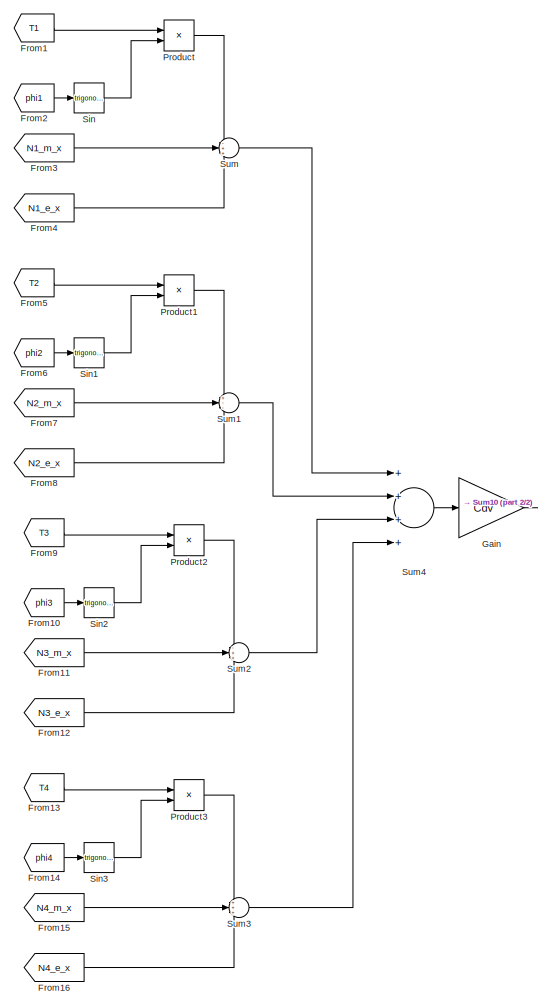
[diagram: Mx - part 1/2, left side, full height]
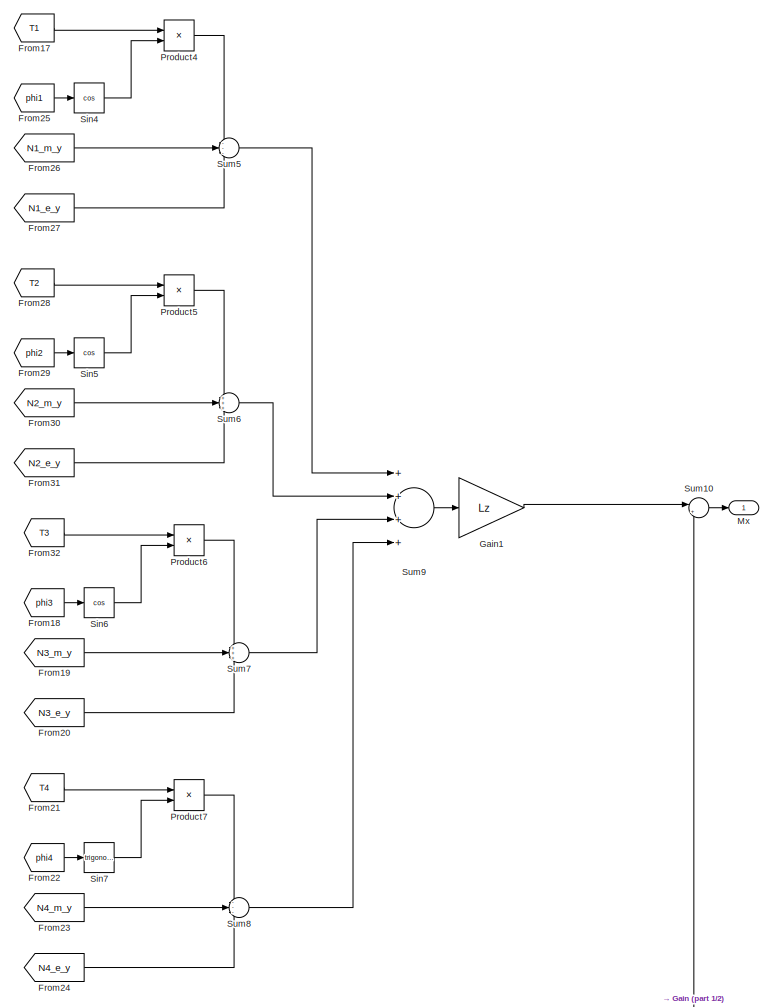
[diagram: Mx - part 2/2, right side, full height]
BLOCK [SubSystem] Mx
  Ports = [0, 1]
  RequestExecContextInheritance = off
  Variant = off
BLOCK [From] Mx/From1
  GotoTag = T1
  TagVisibility = global
BLOCK [From] Mx/From10
  GotoTag = phi3
  TagVisibility = global
BLOCK [From] Mx/From11
  GotoTag = N3_m_x
  TagVisibility = global
BLOCK [From] Mx/From12
  GotoTag = N3_e_x
  TagVisibility = global
BLOCK [From] Mx/From13
  GotoTag = T4
  TagVisibility = global
BLOCK [From] Mx/From14
  GotoTag = phi4
  TagVisibility = global
BLOCK [From] Mx/From15
  GotoTag = N4_m_x
  TagVisibility = global
BLOCK [From] Mx/From16
  GotoTag = N4_e_x
  TagVisibility = global
BLOCK [From] Mx/From17
  GotoTag = T1
  TagVisibility = global
BLOCK [From] Mx/From18
  GotoTag = phi3
  TagVisibility = global
BLOCK [From] Mx/From19
  GotoTag = N3_m_y
  TagVisibility = global
BLOCK [From] Mx/From2
  GotoTag = phi1
  TagVisibility = global
BLOCK [From] Mx/From20
  GotoTag = N3_e_y
  TagVisibility = global
BLOCK [From] Mx/From21
  GotoTag = T4
  TagVisibility = global
BLOCK [From] Mx/From22
  GotoTag = phi4
  TagVisibility = global
BLOCK [From] Mx/From23
  GotoTag = N4_m_y
  TagVisibility = global
BLOCK [From] Mx/From24
  GotoTag = N4_e_y
  TagVisibility = global
BLOCK [From] Mx/From25
  GotoTag = phi1
  TagVisibility = global
BLOCK [From] Mx/From26
  GotoTag = N1_m_y
  TagVisibility = global
BLOCK [From] Mx/From27
  GotoTag = N1_e_y
  TagVisibility = global
BLOCK [From] Mx/From28
  GotoTag = T2
  TagVisibility = global
BLOCK [From] Mx/From29
  GotoTag = phi2
  TagVisibility = global
BLOCK [From] Mx/From3
  GotoTag = N1_m_x
  TagVisibility = global
BLOCK [From] Mx/From30
  GotoTag = N2_m_y
  TagVisibility = global
BLOCK [From] Mx/From31
  GotoTag = N2_e_y
  TagVisibility = global
BLOCK [From] Mx/From32
  GotoTag = T3
  TagVisibility = global
BLOCK [From] Mx/From4
  GotoTag = N1_e_x
  TagVisibility = global
BLOCK [From] Mx/From5
  GotoTag = T2
  TagVisibility = global
BLOCK [From] Mx/From6
  GotoTag = phi2
  TagVisibility = global
BLOCK [From] Mx/From7
  GotoTag = N2_m_x
  TagVisibility = global
BLOCK [From] Mx/From8
  GotoTag = N2_e_x
  TagVisibility = global
BLOCK [From] Mx/From9
  GotoTag = T3
  TagVisibility = global
BLOCK [Gain] Mx/Gain
  Gain = Cdv
  OutDataTypeStr = Inherit: Inherit via internal rule
  ParamDataTypeStr = Inherit: Inherit via internal rule
  SaturateOnIntegerOverflow = off
BLOCK [Gain] Mx/Gain1
  Gain = Lz
  OutDataTypeStr = Inherit: Inherit via internal rule
  ParamDataTypeStr = Inherit: Inherit via internal rule
  SaturateOnIntegerOverflow = off
BLOCK [Outport] Mx/Mx
  IconDisplay = Port number
BLOCK [Product] Mx/Product
  InputSameDT = off
  OutDataTypeStr = Inherit: Inherit via internal rule
  Ports = [2, 1]
  RndMeth = Floor
  SaturateOnIntegerOverflow = off
BLOCK [Product] Mx/Product1
  InputSameDT = off
  OutDataTypeStr = Inherit: Inherit via internal rule
  Ports = [2, 1]
  RndMeth = Floor
  SaturateOnIntegerOverflow = off
BLOCK [Product] Mx/Product2
  InputSameDT = off
  OutDataTypeStr = Inherit: Inherit via internal rule
  Ports = [2, 1]
  RndMeth = Floor
  SaturateOnIntegerOverflow = off
BLOCK [Product] Mx/Product3
  InputSameDT = off
  OutDataTypeStr = Inherit: Inherit via internal rule
  Ports = [2, 1]
  RndMeth = Floor
  SaturateOnIntegerOverflow = off
BLOCK [Product] Mx/Product4
  InputSameDT = off
  OutDataTypeStr = Inherit: Inherit via internal rule
  Ports = [2, 1]
  RndMeth = Floor
  SaturateOnIntegerOverflow = off
BLOCK [Product] Mx/Product5
  InputSameDT = off
  OutDataTypeStr = Inherit: Inherit via internal rule
  Ports = [2, 1]
  RndMeth = Floor
  SaturateOnIntegerOverflow = off
BLOCK [Product] Mx/Product6
  InputSameDT = off
  OutDataTypeStr = Inherit: Inherit via internal rule
  Ports = [2, 1]
  RndMeth = Floor
  SaturateOnIntegerOverflow = off
BLOCK [Product] Mx/Product7
  InputSameDT = off
  OutDataTypeStr = Inherit: Inherit via internal rule
  Ports = [2, 1]
  RndMeth = Floor
  SaturateOnIntegerOverflow = off
BLOCK [Trigonometry] Mx/Sin
  Ports = [1, 1]
BLOCK [Trigonometry] Mx/Sin1
  Ports = [1, 1]
BLOCK [Trigonometry] Mx/Sin2
  Ports = [1, 1]
BLOCK [Trigonometry] Mx/Sin3
  Ports = [1, 1]
BLOCK [Trigonometry] Mx/Sin4
  Operator = cos
  Ports = [1, 1]
BLOCK [Trigonometry] Mx/Sin5
  Operator = cos
  Ports = [1, 1]
BLOCK [Trigonometry] Mx/Sin6
  Operator = cos
  Ports = [1, 1]
BLOCK [Trigonometry] Mx/Sin7
  Ports = [1, 1]
BLOCK [Sum] Mx/Sum
  IconShape = round
  InputSameDT = off
  Inputs = -++
  OutDataTypeStr = Inherit: Inherit via internal rule
  Ports = [3, 1]
  SaturateOnIntegerOverflow = off
BLOCK [Sum] Mx/Sum1
  IconShape = round
  InputSameDT = off
  Inputs = +--
  OutDataTypeStr = Inherit: Inherit via internal rule
  Ports = [3, 1]
  SaturateOnIntegerOverflow = off
BLOCK [Sum] Mx/Sum10
  IconShape = round
  InputSameDT = off
  Inputs = |++
  OutDataTypeStr = Inherit: Inherit via internal rule
  Ports = [2, 1]
  SaturateOnIntegerOverflow = off
BLOCK [Sum] Mx/Sum2
  IconShape = round
  InputSameDT = off
  Inputs = -++
  OutDataTypeStr = Inherit: Inherit via internal rule
  Ports = [3, 1]
  SaturateOnIntegerOverflow = off
BLOCK [Sum] Mx/Sum3
  IconShape = round
  InputSameDT = off
  Inputs = +++
  OutDataTypeStr = Inherit: Inherit via internal rule
  Ports = [3, 1]
  SaturateOnIntegerOverflow = off
BLOCK [Sum] Mx/Sum4
  InputSameDT = off
  Inputs = ++++
  OutDataTypeStr = Inherit: Inherit via internal rule
  Ports = [4, 1]
  SaturateOnIntegerOverflow = off
BLOCK [Sum] Mx/Sum5
  IconShape = round
  InputSameDT = off
  Inputs = ---
  OutDataTypeStr = Inherit: Inherit via internal rule
  Ports = [3, 1]
  SaturateOnIntegerOverflow = off
BLOCK [Sum] Mx/Sum6
  IconShape = round
  InputSameDT = off
  Inputs = +++
  OutDataTypeStr = Inherit: Inherit via internal rule
  Ports = [3, 1]
  SaturateOnIntegerOverflow = off
BLOCK [Sum] Mx/Sum7
  IconShape = round
  InputSameDT = off
  Inputs = +++
  OutDataTypeStr = Inherit: Inherit via internal rule
  Ports = [3, 1]
  SaturateOnIntegerOverflow = off
BLOCK [Sum] Mx/Sum8
  IconShape = round
  InputSameDT = off
  Inputs = ---
  OutDataTypeStr = Inherit: Inherit via internal rule
  Ports = [3, 1]
  SaturateOnIntegerOverflow = off
BLOCK [Sum] Mx/Sum9
  InputSameDT = off
  Inputs = ++++
  OutDataTypeStr = Inherit: Inherit via internal rule
  Ports = [4, 1]
  SaturateOnIntegerOverflow = off
BLOCK [SubSystem] My
  Ports = [0, 1]
  RequestExecContextInheritance = off
  Variant = off
BLOCK [From] My/From1
  GotoTag = T1
  TagVisibility = global
BLOCK [From] My/From10
  GotoTag = phi3
  TagVisibility = global
BLOCK [From] My/From11
  GotoTag = N3_m_x
  TagVisibility = global
BLOCK [From] My/From12
  GotoTag = N3_e_x
  TagVisibility = global
BLOCK [From] My/From13
  GotoTag = T4
  TagVisibility = global
BLOCK [From] My/From14
  GotoTag = phi4
  TagVisibility = global
BLOCK [From] My/From15
  GotoTag = N4_m_x
  TagVisibility = global
BLOCK [From] My/From16
  GotoTag = N4_e_x
  TagVisibility = global
BLOCK [From] My/From17
  GotoTag = T1
  TagVisibility = global
BLOCK [From] My/From18
  GotoTag = phi3
  TagVisibility = global
BLOCK [From] My/From19
  GotoTag = N3_m_y
  TagVisibility = global
BLOCK [From] My/From2
  GotoTag = phi1
  TagVisibility = global
BLOCK [From] My/From20
  GotoTag = N3_e_y
  TagVisibility = global
BLOCK [From] My/From21
  GotoTag = T4
  TagVisibility = global
BLOCK [From] My/From22
  GotoTag = phi4
  TagVisibility = global
BLOCK [From] My/From23
  GotoTag = N4_m_y
  TagVisibility = global
BLOCK [From] My/From24
  GotoTag = N4_e_y
  TagVisibility = global
BLOCK [From] My/From25
  GotoTag = phi1
  TagVisibility = global
BLOCK [From] My/From26
  GotoTag = N1_m_y
  TagVisibility = global
BLOCK [From] My/From27
  GotoTag = N1_e_y
  TagVisibility = global
BLOCK [From] My/From28
  GotoTag = T2
  TagVisibility = global
BLOCK [From] My/From29
  GotoTag = phi2
  TagVisibility = global
BLOCK [From] My/From3
  GotoTag = N1_m_x
  TagVisibility = global
BLOCK [From] My/From30
  GotoTag = N2_m_y
  TagVisibility = global
BLOCK [From] My/From31
  GotoTag = N2_e_y
  TagVisibility = global
BLOCK [From] My/From32
  GotoTag = T3
  TagVisibility = global
BLOCK [From] My/From4
  GotoTag = N1_e_x
  TagVisibility = global
BLOCK [From] My/From5
  GotoTag = T2
  TagVisibility = global
BLOCK [From] My/From6
  GotoTag = phi2
  TagVisibility = global
BLOCK [From] My/From7
  GotoTag = N2_m_x
  TagVisibility = global
BLOCK [From] My/From8
  GotoTag = N2_e_x
  TagVisibility = global
BLOCK [From] My/From9
  GotoTag = T3
  TagVisibility = global
BLOCK [Gain] My/Gain
  Gain = Lz
  OutDataTypeStr = Inherit: Inherit via internal rule
  ParamDataTypeStr = Inherit: Inherit via internal rule
  SaturateOnIntegerOverflow = off
BLOCK [Gain] My/Gain1
  Gain = Cdv
  OutDataTypeStr = Inherit: Inherit via internal rule
  ParamDataTypeStr = Inherit: Inherit via internal rule
  SaturateOnIntegerOverflow = off
BLOCK [Outport] My/My
  IconDisplay = Port number
BLOCK [Product] My/Product
  InputSameDT = off
  OutDataTypeStr = Inherit: Inherit via internal rule
  Ports = [2, 1]
  RndMeth = Floor
  SaturateOnIntegerOverflow = off
BLOCK [Product] My/Product1
  InputSameDT = off
  OutDataTypeStr = Inherit: Inherit via internal rule
  Ports = [2, 1]
  RndMeth = Floor
  SaturateOnIntegerOverflow = off
BLOCK [Product] My/Product2
  InputSameDT = off
  OutDataTypeStr = Inherit: Inherit via internal rule
  Ports = [2, 1]
  RndMeth = Floor
  SaturateOnIntegerOverflow = off
BLOCK [Product] My/Product3
  InputSameDT = off
  OutDataTypeStr = Inherit: Inherit via internal rule
  Ports = [2, 1]
  RndMeth = Floor
  SaturateOnIntegerOverflow = off
BLOCK [Product] My/Product4
  InputSameDT = off
  OutDataTypeStr = Inherit: Inherit via internal rule
  Ports = [2, 1]
  RndMeth = Floor
  SaturateOnIntegerOverflow = off
BLOCK [Product] My/Product5
  InputSameDT = off
  OutDataTypeStr = Inherit: Inherit via internal rule
  Ports = [2, 1]
  RndMeth = Floor
  SaturateOnIntegerOverflow = off
BLOCK [Product] My/Product6
  InputSameDT = off
  OutDataTypeStr = Inherit: Inherit via internal rule
  Ports = [2, 1]
  RndMeth = Floor
  SaturateOnIntegerOverflow = off
BLOCK [Product] My/Product7
  InputSameDT = off
  OutDataTypeStr = Inherit: Inherit via internal rule
  Ports = [2, 1]
  RndMeth = Floor
  SaturateOnIntegerOverflow = off
BLOCK [Trigonometry] My/Sin
  Ports = [1, 1]
BLOCK [Trigonometry] My/Sin1
  Ports = [1, 1]
BLOCK [Trigonometry] My/Sin2
  Ports = [1, 1]
BLOCK [Trigonometry] My/Sin3
  Ports = [1, 1]
BLOCK [Trigonometry] My/Sin4
  Operator = cos
  Ports = [1, 1]
BLOCK [Trigonometry] My/Sin5
  Operator = cos
  Ports = [1, 1]
BLOCK [Trigonometry] My/Sin6
  Operator = cos
  Ports = [1, 1]
BLOCK [Trigonometry] My/Sin7
  Ports = [1, 1]
BLOCK [Sum] My/Sum
  IconShape = round
  InputSameDT = off
  Inputs = +--
  OutDataTypeStr = Inherit: Inherit via internal rule
  Ports = [3, 1]
  SaturateOnIntegerOverflow = off
BLOCK [Sum] My/Sum1
  IconShape = round
  InputSameDT = off
  Inputs = -++
  OutDataTypeStr = Inherit: Inherit via internal rule
  Ports = [3, 1]
  SaturateOnIntegerOverflow = off
BLOCK [Sum] My/Sum10
  IconShape = round
  InputSameDT = off
  Inputs = |++
  OutDataTypeStr = Inherit: Inherit via internal rule
  Ports = [2, 1]
  SaturateOnIntegerOverflow = off
BLOCK [Sum] My/Sum2
  IconShape = round
  InputSameDT = off
  Inputs = -++
  OutDataTypeStr = Inherit: Inherit via internal rule
  Ports = [3, 1]
  SaturateOnIntegerOverflow = off
BLOCK [Sum] My/Sum3
  IconShape = round
  InputSameDT = off
  Inputs = +--
  OutDataTypeStr = Inherit: Inherit via internal rule
  Ports = [3, 1]
  SaturateOnIntegerOverflow = off
BLOCK [Sum] My/Sum4
  InputSameDT = off
  Inputs = ++++
  OutDataTypeStr = Inherit: Inherit via internal rule
  Ports = [4, 1]
  SaturateOnIntegerOverflow = off
BLOCK [Sum] My/Sum5
  IconShape = round
  InputSameDT = off
  Inputs = ---
  OutDataTypeStr = Inherit: Inherit via internal rule
  Ports = [3, 1]
  SaturateOnIntegerOverflow = off
BLOCK [Sum] My/Sum6
  IconShape = round
  InputSameDT = off
  Inputs = +++
  OutDataTypeStr = Inherit: Inherit via internal rule
  Ports = [3, 1]
  SaturateOnIntegerOverflow = off
BLOCK [Sum] My/Sum7
  IconShape = round
  InputSameDT = off
  Inputs = ---
  OutDataTypeStr = Inherit: Inherit via internal rule
  Ports = [3, 1]
  SaturateOnIntegerOverflow = off
BLOCK [Sum] My/Sum8
  IconShape = round
  InputSameDT = off
  Inputs = +++
  OutDataTypeStr = Inherit: Inherit via internal rule
  Ports = [3, 1]
  SaturateOnIntegerOverflow = off
BLOCK [Sum] My/Sum9
  InputSameDT = off
  Inputs = ++++
  OutDataTypeStr = Inherit: Inherit via internal rule
  Ports = [4, 1]
  SaturateOnIntegerOverflow = off
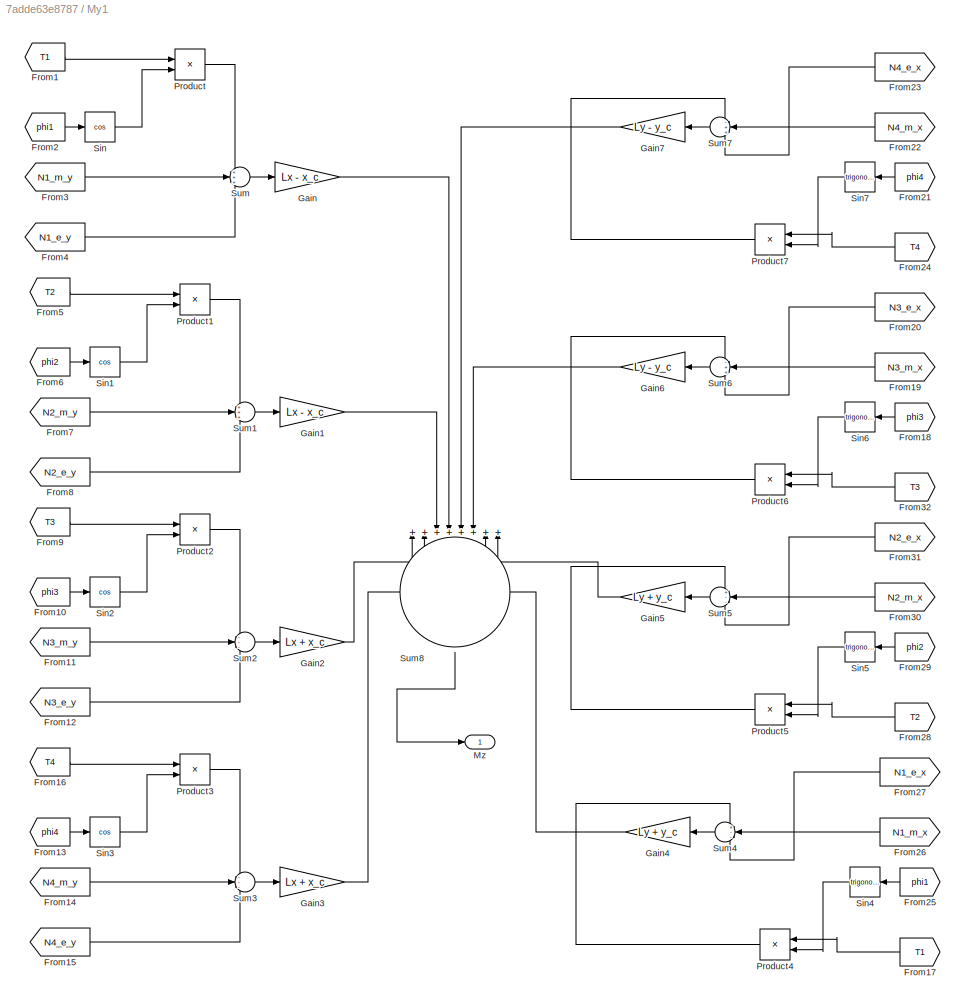
BLOCK [SubSystem] My1
  Ports = [0, 1]
  RequestExecContextInheritance = off
  Variant = off
BLOCK [From] My1/From1
  GotoTag = T1
  TagVisibility = global
BLOCK [From] My1/From10
  GotoTag = phi3
  TagVisibility = global
BLOCK [From] My1/From11
  GotoTag = N3_m_y
  TagVisibility = global
BLOCK [From] My1/From12
  GotoTag = N3_e_y
  TagVisibility = global
BLOCK [From] My1/From13
  GotoTag = phi4
  TagVisibility = global
BLOCK [From] My1/From14
  GotoTag = N4_m_y
  TagVisibility = global
BLOCK [From] My1/From15
  GotoTag = N4_e_y
  TagVisibility = global
BLOCK [From] My1/From16
  GotoTag = T4
  TagVisibility = global
BLOCK [From] My1/From17
  GotoTag = T1
  TagVisibility = global
BLOCK [From] My1/From18
  GotoTag = phi3
  TagVisibility = global
BLOCK [From] My1/From19
  GotoTag = N3_m_x
  TagVisibility = global
BLOCK [From] My1/From2
  GotoTag = phi1
  TagVisibility = global
BLOCK [From] My1/From20
  GotoTag = N3_e_x
  TagVisibility = global
BLOCK [From] My1/From21
  GotoTag = phi4
  TagVisibility = global
BLOCK [From] My1/From22
  GotoTag = N4_m_x
  TagVisibility = global
BLOCK [From] My1/From23
  GotoTag = N4_e_x
  TagVisibility = global
BLOCK [From] My1/From24
  GotoTag = T4
  TagVisibility = global
BLOCK [From] My1/From25
  GotoTag = phi1
  TagVisibility = global
BLOCK [From] My1/From26
  GotoTag = N1_m_x
  TagVisibility = global
BLOCK [From] My1/From27
  GotoTag = N1_e_x
  TagVisibility = global
BLOCK [From] My1/From28
  GotoTag = T2
  TagVisibility = global
BLOCK [From] My1/From29
  GotoTag = phi2
  TagVisibility = global
BLOCK [From] My1/From3
  GotoTag = N1_m_y
  TagVisibility = global
BLOCK [From] My1/From30
  GotoTag = N2_m_x
  TagVisibility = global
BLOCK [From] My1/From31
  GotoTag = N2_e_x
  TagVisibility = global
BLOCK [From] My1/From32
  GotoTag = T3
  TagVisibility = global
BLOCK [From] My1/From4
  GotoTag = N1_e_y
  TagVisibility = global
BLOCK [From] My1/From5
  GotoTag = T2
  TagVisibility = global
BLOCK [From] My1/From6
  GotoTag = phi2
  TagVisibility = global
BLOCK [From] My1/From7
  GotoTag = N2_m_y
  TagVisibility = global
BLOCK [From] My1/From8
  GotoTag = N2_e_y
  TagVisibility = global
BLOCK [From] My1/From9
  GotoTag = T3
  TagVisibility = global
BLOCK [Gain] My1/Gain
  Gain = Lx - x_c
  OutDataTypeStr = Inherit: Inherit via internal rule
  ParamDataTypeStr = Inherit: Inherit via internal rule
  SaturateOnIntegerOverflow = off
BLOCK [Gain] My1/Gain1
  Gain = Lx - x_c
  OutDataTypeStr = Inherit: Inherit via internal rule
  ParamDataTypeStr = Inherit: Inherit via internal rule
  SaturateOnIntegerOverflow = off
BLOCK [Gain] My1/Gain2
  Gain = Lx + x_c
  OutDataTypeStr = Inherit: Inherit via internal rule
  ParamDataTypeStr = Inherit: Inherit via internal rule
  SaturateOnIntegerOverflow = off
BLOCK [Gain] My1/Gain3
  Gain = Lx + x_c
  OutDataTypeStr = Inherit: Inherit via internal rule
  ParamDataTypeStr = Inherit: Inherit via internal rule
  SaturateOnIntegerOverflow = off
BLOCK [Gain] My1/Gain4
  Gain = Ly + y_c
  OutDataTypeStr = Inherit: Inherit via internal rule
  ParamDataTypeStr = Inherit: Inherit via internal rule
  SaturateOnIntegerOverflow = off
BLOCK [Gain] My1/Gain5
  Gain = Ly + y_c
  OutDataTypeStr = Inherit: Inherit via internal rule
  ParamDataTypeStr = Inherit: Inherit via internal rule
  SaturateOnIntegerOverflow = off
BLOCK [Gain] My1/Gain6
  Gain = Ly - y_c
  OutDataTypeStr = Inherit: Inherit via internal rule
  ParamDataTypeStr = Inherit: Inherit via internal rule
  SaturateOnIntegerOverflow = off
BLOCK [Gain] My1/Gain7
  Gain = Ly - y_c
  OutDataTypeStr = Inherit: Inherit via internal rule
  ParamDataTypeStr = Inherit: Inherit via internal rule
  SaturateOnIntegerOverflow = off
BLOCK [Outport] My1/Mz
  IconDisplay = Port number
BLOCK [Product] My1/Product
  InputSameDT = off
  OutDataTypeStr = Inherit: Inherit via internal rule
  Ports = [2, 1]
  RndMeth = Floor
  SaturateOnIntegerOverflow = off
BLOCK [Product] My1/Product1
  InputSameDT = off
  OutDataTypeStr = Inherit: Inherit via internal rule
  Ports = [2, 1]
  RndMeth = Floor
  SaturateOnIntegerOverflow = off
BLOCK [Product] My1/Product2
  InputSameDT = off
  OutDataTypeStr = Inherit: Inherit via internal rule
  Ports = [2, 1]
  RndMeth = Floor
  SaturateOnIntegerOverflow = off
BLOCK [Product] My1/Product3
  InputSameDT = off
  OutDataTypeStr = Inherit: Inherit via internal rule
  Ports = [2, 1]
  RndMeth = Floor
  SaturateOnIntegerOverflow = off
BLOCK [Product] My1/Product4
  InputSameDT = off
  OutDataTypeStr = Inherit: Inherit via internal rule
  Ports = [2, 1]
  RndMeth = Floor
  SaturateOnIntegerOverflow = off
BLOCK [Product] My1/Product5
  InputSameDT = off
  OutDataTypeStr = Inherit: Inherit via internal rule
  Ports = [2, 1]
  RndMeth = Floor
  SaturateOnIntegerOverflow = off
BLOCK [Product] My1/Product6
  InputSameDT = off
  OutDataTypeStr = Inherit: Inherit via internal rule
  Ports = [2, 1]
  RndMeth = Floor
  SaturateOnIntegerOverflow = off
BLOCK [Product] My1/Product7
  InputSameDT = off
  OutDataTypeStr = Inherit: Inherit via internal rule
  Ports = [2, 1]
  RndMeth = Floor
  SaturateOnIntegerOverflow = off
BLOCK [Trigonometry] My1/Sin
  Operator = cos
  Ports = [1, 1]
BLOCK [Trigonometry] My1/Sin1
  Operator = cos
  Ports = [1, 1]
BLOCK [Trigonometry] My1/Sin2
  Operator = cos
  Ports = [1, 1]
BLOCK [Trigonometry] My1/Sin3
  Operator = cos
  Ports = [1, 1]
BLOCK [Trigonometry] My1/Sin4
  Ports = [1, 1]
BLOCK [Trigonometry] My1/Sin5
  Ports = [1, 1]
BLOCK [Trigonometry] My1/Sin6
  Ports = [1, 1]
BLOCK [Trigonometry] My1/Sin7
  Ports = [1, 1]
BLOCK [Sum] My1/Sum
  IconShape = round
  InputSameDT = off
  Inputs = +++
  OutDataTypeStr = Inherit: Inherit via internal rule
  Ports = [3, 1]
  SaturateOnIntegerOverflow = off
BLOCK [Sum] My1/Sum1
  IconShape = round
  InputSameDT = off
  Inputs = +++
  OutDataTypeStr = Inherit: Inherit via internal rule
  Ports = [3, 1]
  SaturateOnIntegerOverflow = off
BLOCK [Sum] My1/Sum2
  IconShape = round
  InputSameDT = off
  Inputs = ---
  OutDataTypeStr = Inherit: Inherit via internal rule
  Ports = [3, 1]
  SaturateOnIntegerOverflow = off
BLOCK [Sum] My1/Sum3
  IconShape = round
  InputSameDT = off
  Inputs = ---
  OutDataTypeStr = Inherit: Inherit via internal rule
  Ports = [3, 1]
  SaturateOnIntegerOverflow = off
BLOCK [Sum] My1/Sum4
  IconShape = round
  InputSameDT = off
  Inputs = +--
  OutDataTypeStr = Inherit: Inherit via internal rule
  Ports = [3, 1]
  SaturateOnIntegerOverflow = off
BLOCK [Sum] My1/Sum5
  IconShape = round
  InputSameDT = off
  Inputs = +--
  OutDataTypeStr = Inherit: Inherit via internal rule
  Ports = [3, 1]
  SaturateOnIntegerOverflow = off
BLOCK [Sum] My1/Sum6
  IconShape = round
  InputSameDT = off
  Inputs = -++
  OutDataTypeStr = Inherit: Inherit via internal rule
  Ports = [3, 1]
  SaturateOnIntegerOverflow = off
BLOCK [Sum] My1/Sum7
  IconShape = round
  InputSameDT = off
  Inputs = -++
  OutDataTypeStr = Inherit: Inherit via internal rule
  Ports = [3, 1]
  SaturateOnIntegerOverflow = off
BLOCK [Sum] My1/Sum8
  IconShape = round
  InputSameDT = off
  Inputs = ++++++++
  OutDataTypeStr = Inherit: Inherit via internal rule
  Ports = [8, 1]
  SaturateOnIntegerOverflow = off
BLOCK [Scope] Scope1
  NumInputPorts = 1
  Ports = [1]
  ScopeSpecificationString = C++SS(StrPVP('Location','[1, 49, 1921, 1039]'),StrPVP('Open','off'),MxPVP('AxesTitles',53,'struct(''axes1'',''%<SignalLabel>'')'),MxPVP('ScopeGraphics',56,'struct(''FigureColor'',''[0.5 0.5 0.5]'',''AxesColor'',''[0 0 0]'',''AxesTickColor'',''[1 1 1]'',''LineColors'',''[1 1 0;1 0 1;0 1 1;1 0 0;0 1 0;0 0 1]'',''LineStyles'',''-|-|-|-|-|-'',''LineWidths'',''[0.5 0.5 0.5 0.5 0.5 0.5]'',''MarkerStyles...<+218ch>
BLOCK [Scope] Scope2
  NumInputPorts = 1
  Ports = [1]
BLOCK [Scope] Scope3
  NumInputPorts = 1
  Ports = [1]
  ScopeSpecificationString = C++SS(StrPVP('Location','[188, 365, 512, 604]'),StrPVP('Open','off'),MxPVP('AxesTitles',53,'struct(''axes1'',''%<SignalLabel>'')'),MxPVP('ScopeGraphics',56,'struct(''FigureColor'',''[0.5 0.5 0.5]'',''AxesColor'',''[0 0 0]'',''AxesTickColor'',''[1 1 1]'',''LineColors'',''[1 1 0;1 0 1;0 1 1;1 0 0;0 1 0;0 0 1]'',''LineStyles'',''-|-|-|-|-|-'',''LineWidths'',''[0.5 0.5 0.5 0.5 0.5 0.5]'',''MarkerStyle...<+192ch>
BLOCK [Scope] Scope4
  NumInputPorts = 1
  Ports = [1]
BLOCK [Scope] Scope5
  NumInputPorts = 1
  Ports = [1]
  ScopeSpecificationString = C++SS(StrPVP('Location','[202, 533, 526, 772]'),StrPVP('Open','off'),StrPVP('ZoomMode','xonly'),MxPVP('AxesTitles',53,'struct(''axes1'',''%<SignalLabel>'')'),MxPVP('ScopeGraphics',56,'struct(''FigureColor'',''[0.5 0.5 0.5]'',''AxesColor'',''[0 0 0]'',''AxesTickColor'',''[1 1 1]'',''LineColors'',''[1 1 0;1 0 1;0 1 1;1 0 0;0 1 0;0 0 1]'',''LineStyles'',''-|-|-|-|-|-'',''LineWidths'',''[0.5 0.5 0.5 0...<+219ch>
BLOCK [SubSystem] V_vinta_calc
  ErrorFcn = Stateflow.Translate.translate
  PermitHierarchicalResolution = ExplicitOnly
  Ports = [6, 1]
  RequestExecContextInheritance = off
  SFBlockType = MATLAB Function
  TreatAsAtomicUnit = on
  Variant = off
BLOCK [Demux] V_vinta_calc/ Demux 
  Outputs = 1
  Ports = [1, 1]
BLOCK [S-Function] V_vinta_calc/ SFunction 
  EnableBusSupport = on
  FunctionName = sf_sfun
  PortCounts = [6 2]
  Ports = [6, 2]
  SFcnIsStateOwnerBlock = off
  SFunctionDeploymentMode = off
  Tag = Stateflow S-Function Test_openloop 9
BLOCK [Terminator] V_vinta_calc/ Terminator 
BLOCK [Inport] V_vinta_calc/V
  IconDisplay = Port number
BLOCK [Outport] V_vinta_calc/V_vint
  IconDisplay = Port number
BLOCK [Inport] V_vinta_calc/alpha
  IconDisplay = Port number
  Port = 6
BLOCK [Inport] V_vinta_calc/phi1
  IconDisplay = Port number
  Port = 2
BLOCK [Inport] V_vinta_calc/phi2
  IconDisplay = Port number
  Port = 3
BLOCK [Inport] V_vinta_calc/phi3
  IconDisplay = Port number
  Port = 4
BLOCK [Inport] V_vinta_calc/phi4
  IconDisplay = Port number
  Port = 5
BLOCK [Scope] q_g
  NumInputPorts = 1
  Ports = [1]
  ScopeSpecificationString = Simulink.scopes.TimeScopeBlockCfg('CurrentConfiguration', extmgr.ConfigurationSet(extmgr.Configuration('Core','General UI',true),extmgr.Configuration('Core','Source UI',true),extmgr.Configuration('Sources','WiredSimulink',true,'DataLoggingLimitDataPoints',true,'DataLoggingSaveFormat','Array','DataLoggingDecimation','1','DataLoggingDecimateData',true),extmgr.Configuration('Visuals','Time Domain',tr...<+1764ch>
ANNOTATION (root): n
ANNOTATION Aerofroces normal motor: N_y
ANNOTATION Dynamics in local: V, omega local
LINE Aerofroces elevon/Fcn1:1 -> Aerofroces elevon/Product3:2
LINE Aerofroces elevon/Fcn2:1 -> Aerofroces elevon/Product1:1
LINE Aerofroces elevon/Fcn3:1 -> Aerofroces elevon/Product4:2
LINE Aerofroces elevon/Fcn4:1 -> Aerofroces elevon/Product5:1
LINE Aerofroces elevon/Fcn5:1 -> Aerofroces elevon/Product6:2
LINE Aerofroces elevon/Fcn6:1 -> Aerofroces elevon/Product7:1
LINE Aerofroces elevon/Fcn7:1 -> Aerofroces elevon/Product8:2
LINE Aerofroces elevon/Fcn:1 -> Aerofroces elevon/Product2:1
LINE Aerofroces elevon/From1:1 -> Aerofroces elevon/Sum1:2
LINE Aerofroces elevon/From2:1 -> Aerofroces elevon/Sum:1
LINE Aerofroces elevon/From3:1 -> Aerofroces elevon/Sum1:1
LINE Aerofroces elevon/From4:1 -> Aerofroces elevon/Sum2:2
LINE Aerofroces elevon/From5:1 -> Aerofroces elevon/Sum2:1
LINE Aerofroces elevon/From6:1 -> Aerofroces elevon/Sum3:2
LINE Aerofroces elevon/From7:1 -> Aerofroces elevon/Sum3:1
LINE Aerofroces elevon/From:1 -> Aerofroces elevon/Sum:2
NET Aerofroces elevon/Gain1:1 -> Aerofroces elevon/MATLAB Function1:1, Aerofroces elevon/MATLAB Function6:1
NET Aerofroces elevon/Gain2:1 -> Aerofroces elevon/MATLAB Function3:1, Aerofroces elevon/MATLAB Function7:1
NET Aerofroces elevon/Gain3:1 -> Aerofroces elevon/MATLAB Function4:1, Aerofroces elevon/MATLAB Function8:1
NET Aerofroces elevon/Gain:1 -> Aerofroces elevon/MATLAB Function2:1, Aerofroces elevon/MATLAB Function5:1
LINE Aerofroces elevon/MATLAB Function1:1 -> Aerofroces elevon/Product1:2
LINE Aerofroces elevon/MATLAB Function2:1 -> Aerofroces elevon/Product2:2
LINE Aerofroces elevon/MATLAB Function3:1 -> Aerofroces elevon/Product5:2
LINE Aerofroces elevon/MATLAB Function4:1 -> Aerofroces elevon/Product7:2
LINE Aerofroces elevon/MATLAB Function5:1 -> Aerofroces elevon/Product3:1
LINE Aerofroces elevon/MATLAB Function6:1 -> Aerofroces elevon/Product4:1
LINE Aerofroces elevon/MATLAB Function7:1 -> Aerofroces elevon/Product6:1
LINE Aerofroces elevon/MATLAB Function8:1 -> Aerofroces elevon/Product8:1
NET Aerofroces elevon/Product1:1 -> Aerofroces elevon/Goto2:1, Aerofroces elevon/N2_e_x:1
NET Aerofroces elevon/Product2:1 -> Aerofroces elevon/Goto:1, Aerofroces elevon/N1_e_x:1
NET Aerofroces elevon/Product3:1 -> Aerofroces elevon/Goto1:1, Aerofroces elevon/N1_e_y:1
NET Aerofroces elevon/Product4:1 -> Aerofroces elevon/Goto3:1, Aerofroces elevon/N2_e_y:1
NET Aerofroces elevon/Product5:1 -> Aerofroces elevon/Goto4:1, Aerofroces elevon/N3_e_x:1
NET Aerofroces elevon/Product6:1 -> Aerofroces elevon/Goto5:1, Aerofroces elevon/N3_e_y:1
NET Aerofroces elevon/Product7:1 -> Aerofroces elevon/Goto6:1, Aerofroces elevon/N4_e_x:1
NET Aerofroces elevon/Product8:1 -> Aerofroces elevon/Goto7:1, Aerofroces elevon/N4_e_y:1
LINE Aerofroces elevon/Sum1:1 -> Aerofroces elevon/Gain1:1
LINE Aerofroces elevon/Sum2:1 -> Aerofroces elevon/Gain2:1
LINE Aerofroces elevon/Sum3:1 -> Aerofroces elevon/Gain3:1
LINE Aerofroces elevon/Sum:1 -> Aerofroces elevon/Gain:1
NET Aerofroces elevon/V:1 -> Aerofroces elevon/Fcn1:1, Aerofroces elevon/Fcn2:1, Aerofroces elevon/Fcn3:1, Aerofroces elevon/Fcn4:1, Aerofroces elevon/Fcn5:1, Aerofroces elevon/Fcn6:1, Aerofroces elevon/Fcn7:1, Aerofroces elevon/Fcn:1
LINE Aerofroces elevon:1 -> Mux3:1
LINE Aerofroces elevon:2 -> Mux3:2
LINE Aerofroces elevon:3 -> Mux3:3
LINE Aerofroces elevon:4 -> Mux3:4
LINE Aerofroces elevon:5 -> Mux3:5
LINE Aerofroces elevon:6 -> Mux3:6
LINE Aerofroces elevon:7 -> Mux3:7
LINE Aerofroces elevon:8 -> Mux3:8
LINE Aerofroces normal motor/C_akpha_x1:1 -> Aerofroces normal motor/Product6:2
LINE Aerofroces normal motor/C_akpha_x4:1 -> Aerofroces normal motor/Product2:2
LINE Aerofroces normal motor/C_akpha_x:1 -> Aerofroces normal motor/Product:2
LINE Aerofroces normal motor/Fcn1:1 -> Aerofroces normal motor/Product1:2
LINE Aerofroces normal motor/Fcn2:1 -> Aerofroces normal motor/Product2:1
LINE Aerofroces normal motor/Fcn3:1 -> Aerofroces normal motor/Product3:2
LINE Aerofroces normal motor/Fcn4:1 -> Aerofroces normal motor/Product4:1
LINE Aerofroces normal motor/Fcn5:1 -> Aerofroces normal motor/Product5:2
LINE Aerofroces normal motor/Fcn6:1 -> Aerofroces normal motor/Product6:1
LINE Aerofroces normal motor/Fcn7:1 -> Aerofroces normal motor/Product7:2
LINE Aerofroces normal motor/Fcn:1 -> Aerofroces normal motor/Product:1
LINE Aerofroces normal motor/From1:1 -> Aerofroces normal motor/Sum:1
LINE Aerofroces normal motor/From2:1 -> Aerofroces normal motor/Sum1:2
LINE Aerofroces normal motor/From3:1 -> Aerofroces normal motor/Sum1:1
LINE Aerofroces normal motor/From4:1 -> Aerofroces normal motor/Sum2:2
LINE Aerofroces normal motor/From5:1 -> Aerofroces normal motor/Sum2:1
LINE Aerofroces normal motor/From6:1 -> Aerofroces normal motor/Sum3:2
LINE Aerofroces normal motor/From7:1 -> Aerofroces normal motor/Sum3:1
LINE Aerofroces normal motor/From:1 -> Aerofroces normal motor/Sum:2
NET Aerofroces normal motor/Gain1:1 -> Aerofroces normal motor/C_akpha_x4:1, Aerofroces normal motor/MATLAB Function2:1
NET Aerofroces normal motor/Gain2:1 -> Aerofroces normal motor/MATLAB Function3:1, Aerofroces normal motor/MATLAB Function5:1
NET Aerofroces normal motor/Gain3:1 -> Aerofroces normal motor/C_akpha_x1:1, Aerofroces normal motor/MATLAB Function4:1
NET Aerofroces normal motor/Gain:1 -> Aerofroces normal motor/C_akpha_x:1, Aerofroces normal motor/MATLAB Function1:1
LINE Aerofroces normal motor/MATLAB Function1:1 -> Aerofroces normal motor/Product1:1
LINE Aerofroces normal motor/MATLAB Function2:1 -> Aerofroces normal motor/Product3:1
LINE Aerofroces normal motor/MATLAB Function3:1 -> Aerofroces normal motor/Product5:1
LINE Aerofroces normal motor/MATLAB Function4:1 -> Aerofroces normal motor/Product7:1
LINE Aerofroces normal motor/MATLAB Function5:1 -> Aerofroces normal motor/Product4:2
NET Aerofroces normal motor/Product1:1 -> Aerofroces normal motor/Goto4:1, Aerofroces normal motor/N1_m_y:1
NET Aerofroces normal motor/Product2:1 -> Aerofroces normal motor/Goto1:1, Aerofroces normal motor/N2_m_x:1
NET Aerofroces normal motor/Product3:1 -> Aerofroces normal motor/Goto5:1, Aerofroces normal motor/N2_m_y:1
NET Aerofroces normal motor/Product4:1 -> Aerofroces normal motor/Goto2:1, Aerofroces normal motor/N3_m_x:1
NET Aerofroces normal motor/Product5:1 -> Aerofroces normal motor/Goto6:1, Aerofroces normal motor/N3_m_y:1
NET Aerofroces normal motor/Product6:1 -> Aerofroces normal motor/Goto3:1, Aerofroces normal motor/N4_m_x:1
NET Aerofroces normal motor/Product7:1 -> Aerofroces normal motor/Goto7:1, Aerofroces normal motor/N4_m_y:1
NET Aerofroces normal motor/Product:1 -> Aerofroces normal motor/Goto:1, Aerofroces normal motor/N1_m_x:1
LINE Aerofroces normal motor/Sum1:1 -> Aerofroces normal motor/Gain1:1
LINE Aerofroces normal motor/Sum2:1 -> Aerofroces normal motor/Gain2:1
LINE Aerofroces normal motor/Sum3:1 -> Aerofroces normal motor/Gain3:1
LINE Aerofroces normal motor/Sum:1 -> Aerofroces normal motor/Gain:1
NET Aerofroces normal motor/V_vint:1 -> Aerofroces normal motor/Fcn1:1, Aerofroces normal motor/Fcn2:1, Aerofroces normal motor/Fcn3:1, Aerofroces normal motor/Fcn4:1, Aerofroces normal motor/Fcn5:1, Aerofroces normal motor/Fcn6:1, Aerofroces normal motor/Fcn7:1, Aerofroces normal motor/Fcn:1
LINE Aerofroces normal motor:1 -> Mux2:1
NET Aerofroces normal motor:2 -> Mux2:2, Scope5:1
LINE Aerofroces normal motor:3 -> Mux2:3
LINE Aerofroces normal motor:4 -> Mux2:4
LINE Aerofroces normal motor:5 -> Mux2:5
LINE Aerofroces normal motor:6 -> Mux2:6
LINE Aerofroces normal motor:7 -> Mux2:7
LINE Aerofroces normal motor:8 -> Mux2:8
NET Constant2:1 -> Goto6:1, Mux4:3
NET Constant3:1 -> Goto11:1, Goto12:1, Goto13:1, Goto14:1, Mux:1, Mux:2, Mux:3, Mux:4
LINE Constant:1 -> Gain:1
LINE Demux:1 -> V_vinta_calc:2
LINE Demux:2 -> V_vinta_calc:3
LINE Demux:3 -> V_vinta_calc:4
LINE Demux:4 -> V_vinta_calc:5
LINE Dynamics in local/Constant1:1 -> Dynamics in local/Manual Switch:2
LINE Dynamics in local/Constant:1 -> Dynamics in local/MATLAB Function1:1
LINE Dynamics in local/F_local:1 -> Dynamics in local/Manual Switch:1
LINE Dynamics in local/Integrator1:1 -> Dynamics in local/Mux:1
NET Dynamics in local/Integrator2:1 -> Dynamics in local/Mux:2, Dynamics in local/V_g calculation:1, Dynamics in local/alpha calculation3:1, Dynamics in local/pgtdot calculation:1
NET Dynamics in local/Integrator:1 -> Dynamics in local/Goto1:1, Dynamics in local/MATLAB Function2:1, Dynamics in local/Product1:2, Dynamics in local/V_g calculation:2, Dynamics in local/alpha calculation1:1, Dynamics in local/alpha calculation2:1, Dynamics in local/pgtdot calculation:2
LINE Dynamics in local/MATLAB Function1:1 -> Dynamics in local/Product:1
LINE Dynamics in local/MATLAB Function2:1 -> Dynamics in local/Product1:1
LINE Dynamics in local/MATLAB Function3:1 -> Dynamics in local/Sum:2
LINE Dynamics in local/Manual Switch:1 -> Dynamics in local/Sum:1
NET Dynamics in local/Mux:1 -> Dynamics in local/MATLAB Function3:1, Dynamics in local/q_g:1
LINE Dynamics in local/Product1:1 -> Dynamics in local/Sum:3
LINE Dynamics in local/Product:1 -> Dynamics in local/Integrator:1
LINE Dynamics in local/Sum:1 -> Dynamics in local/Product:2
LINE Dynamics in local/V_g calculation:1 -> Dynamics in local/Integrator1:1
NET Dynamics in local/alpha calculation1:1 -> Dynamics in local/Goto2:1, Dynamics in local/Scope1:1
NET Dynamics in local/alpha calculation2:1 -> Dynamics in local/Goto3:1, Dynamics in local/Scope2:1
LINE Dynamics in local/alpha calculation3:1 -> Dynamics in local/Goto4:1
LINE Dynamics in local/alpha calculation3:2 -> Dynamics in local/Goto5:1
LINE Dynamics in local/alpha calculation3:3 -> Dynamics in local/Goto6:1
LINE Dynamics in local/pgtdot calculation:1 -> Dynamics in local/Integrator2:1
LINE Dynamics in local:1 -> q_g:1
LINE From1:1 -> V_vinta_calc:6
LINE From2:1 -> Demux:1
LINE From:1 -> V_vinta_calc:1
LINE Fx/From10:1 -> Fx/Sin2:1
LINE Fx/From11:1 -> Fx/Sum2:2
LINE Fx/From12:1 -> Fx/Sum2:3
LINE Fx/From13:1 -> Fx/Product3:1
LINE Fx/From14:1 -> Fx/Sin3:1
LINE Fx/From15:1 -> Fx/Sum3:2
LINE Fx/From16:1 -> Fx/Sum3:3
LINE Fx/From1:1 -> Fx/Product:1
LINE Fx/From2:1 -> Fx/Sin:1
LINE Fx/From3:1 -> Fx/Sum:2
LINE Fx/From4:1 -> Fx/Sum:3
LINE Fx/From5:1 -> Fx/Product1:1
LINE Fx/From6:1 -> Fx/Sin1:1
LINE Fx/From7:1 -> Fx/Sum1:2
LINE Fx/From8:1 -> Fx/Sum1:3
LINE Fx/From9:1 -> Fx/Product2:1
LINE Fx/Product1:1 -> Fx/Sum1:1
LINE Fx/Product2:1 -> Fx/Sum2:1
LINE Fx/Product3:1 -> Fx/Sum3:1
LINE Fx/Product:1 -> Fx/Sum:1
LINE Fx/Sin1:1 -> Fx/Product1:2
LINE Fx/Sin2:1 -> Fx/Product2:2
LINE Fx/Sin3:1 -> Fx/Product3:2
LINE Fx/Sin:1 -> Fx/Product:2
LINE Fx/Sum1:1 -> Fx/Sum4:2
LINE Fx/Sum2:1 -> Fx/Sum4:3
LINE Fx/Sum3:1 -> Fx/Sum4:4
LINE Fx/Sum4:1 -> Fx/Fx:1
LINE Fx/Sum:1 -> Fx/Sum4:1
LINE Fx:1 -> Mux4:1
LINE Fy/From10:1 -> Fy/Sin2:1
LINE Fy/From11:1 -> Fy/Sum2:2
LINE Fy/From12:1 -> Fy/Sum2:3
LINE Fy/From13:1 -> Fy/Product3:1
LINE Fy/From14:1 -> Fy/Sin3:1
LINE Fy/From15:1 -> Fy/Sum3:2
LINE Fy/From16:1 -> Fy/Sum3:3
LINE Fy/From1:1 -> Fy/Product:1
LINE Fy/From2:1 -> Fy/Sin:1
LINE Fy/From3:1 -> Fy/Sum:2
LINE Fy/From4:1 -> Fy/Sum:3
LINE Fy/From5:1 -> Fy/Product1:1
LINE Fy/From6:1 -> Fy/Sin1:1
LINE Fy/From7:1 -> Fy/Sum1:2
LINE Fy/From8:1 -> Fy/Sum1:3
LINE Fy/From9:1 -> Fy/Product2:1
LINE Fy/Product1:1 -> Fy/Sum1:1
LINE Fy/Product2:1 -> Fy/Sum2:1
LINE Fy/Product3:1 -> Fy/Sum3:1
LINE Fy/Product:1 -> Fy/Sum:1
LINE Fy/Sin1:1 -> Fy/Product1:2
LINE Fy/Sin2:1 -> Fy/Product2:2
LINE Fy/Sin3:1 -> Fy/Product3:2
LINE Fy/Sin:1 -> Fy/Product:2
LINE Fy/Sum1:1 -> Fy/Sum4:2
LINE Fy/Sum2:1 -> Fy/Sum4:3
LINE Fy/Sum3:1 -> Fy/Sum4:4
LINE Fy/Sum4:1 -> Fy/Fy:1
LINE Fy/Sum:1 -> Fy/Sum4:1
LINE Fy:1 -> Mux4:2
LINE Gain:1 -> Motor forces axes:1
LINE Motor forces axes/Demux1:1 -> Motor forces axes/MATLAB Function:1
LINE Motor forces axes/Demux1:2 -> Motor forces axes/MATLAB Function:2
LINE Motor forces axes/Demux1:3 -> Motor forces axes/MATLAB Function:3
LINE Motor forces axes/Demux1:4 -> Motor forces axes/MATLAB Function:4
NET Motor forces axes/MATLAB Function:1 -> Motor forces axes/Goto2:1, Motor forces axes/T1:1
NET Motor forces axes/MATLAB Function:2 -> Motor forces axes/Goto7:1, Motor forces axes/T2:1
NET Motor forces axes/MATLAB Function:3 -> Motor forces axes/Goto8:1, Motor forces axes/T3:1
NET Motor forces axes/MATLAB Function:4 -> Motor forces axes/Goto9:1, Motor forces axes/T4:1
LINE Motor forces axes/V_vint:1 -> Motor forces axes/MATLAB Function:5
LINE Motor forces axes/n_s:1 -> Motor forces axes/Demux1:1
LINE Motor forces axes:1 -> Mux1:1
LINE Motor forces axes:2 -> Mux1:2
LINE Motor forces axes:3 -> Mux1:3
LINE Motor forces axes:4 -> Mux1:4
LINE Mux1:1 -> Scope1:1
LINE Mux2:1 -> Scope3:1
LINE Mux3:1 -> Scope4:1
LINE Mux4:1 -> Mux7:1
LINE Mux5:1 -> Mux7:2
LINE Mux7:1 -> Dynamics in local:1
LINE Mux:1 -> Goto1:1
LINE Mx/From10:1 -> Mx/Sin2:1
LINE Mx/From11:1 -> Mx/Sum2:2
LINE Mx/From12:1 -> Mx/Sum2:3
LINE Mx/From13:1 -> Mx/Product3:1
LINE Mx/From14:1 -> Mx/Sin3:1
LINE Mx/From15:1 -> Mx/Sum3:2
LINE Mx/From16:1 -> Mx/Sum3:3
LINE Mx/From17:1 -> Mx/Product4:1
LINE Mx/From18:1 -> Mx/Sin6:1
LINE Mx/From19:1 -> Mx/Sum7:2
LINE Mx/From1:1 -> Mx/Product:1
LINE Mx/From20:1 -> Mx/Sum7:3
LINE Mx/From21:1 -> Mx/Product7:1
LINE Mx/From22:1 -> Mx/Sin7:1
LINE Mx/From23:1 -> Mx/Sum8:2
LINE Mx/From24:1 -> Mx/Sum8:3
LINE Mx/From25:1 -> Mx/Sin4:1
LINE Mx/From26:1 -> Mx/Sum5:2
LINE Mx/From27:1 -> Mx/Sum5:3
LINE Mx/From28:1 -> Mx/Product5:1
LINE Mx/From29:1 -> Mx/Sin5:1
LINE Mx/From2:1 -> Mx/Sin:1
LINE Mx/From30:1 -> Mx/Sum6:2
LINE Mx/From31:1 -> Mx/Sum6:3
LINE Mx/From32:1 -> Mx/Product6:1
LINE Mx/From3:1 -> Mx/Sum:2
LINE Mx/From4:1 -> Mx/Sum:3
LINE Mx/From5:1 -> Mx/Product1:1
LINE Mx/From6:1 -> Mx/Sin1:1
LINE Mx/From7:1 -> Mx/Sum1:2
LINE Mx/From8:1 -> Mx/Sum1:3
LINE Mx/From9:1 -> Mx/Product2:1
LINE Mx/Gain1:1 -> Mx/Sum10:1
LINE Mx/Gain:1 -> Mx/Sum10:2
LINE Mx/Product1:1 -> Mx/Sum1:1
LINE Mx/Product2:1 -> Mx/Sum2:1
LINE Mx/Product3:1 -> Mx/Sum3:1
LINE Mx/Product4:1 -> Mx/Sum5:1
LINE Mx/Product5:1 -> Mx/Sum6:1
LINE Mx/Product6:1 -> Mx/Sum7:1
LINE Mx/Product7:1 -> Mx/Sum8:1
LINE Mx/Product:1 -> Mx/Sum:1
LINE Mx/Sin1:1 -> Mx/Product1:2
LINE Mx/Sin2:1 -> Mx/Product2:2
LINE Mx/Sin3:1 -> Mx/Product3:2
LINE Mx/Sin4:1 -> Mx/Product4:2
LINE Mx/Sin5:1 -> Mx/Product5:2
LINE Mx/Sin6:1 -> Mx/Product6:2
LINE Mx/Sin7:1 -> Mx/Product7:2
LINE Mx/Sin:1 -> Mx/Product:2
LINE Mx/Sum10:1 -> Mx/Mx:1
LINE Mx/Sum1:1 -> Mx/Sum4:2
LINE Mx/Sum2:1 -> Mx/Sum4:3
LINE Mx/Sum3:1 -> Mx/Sum4:4
LINE Mx/Sum4:1 -> Mx/Gain:1
LINE Mx/Sum5:1 -> Mx/Sum9:1
LINE Mx/Sum6:1 -> Mx/Sum9:2
LINE Mx/Sum7:1 -> Mx/Sum9:3
LINE Mx/Sum8:1 -> Mx/Sum9:4
LINE Mx/Sum9:1 -> Mx/Gain1:1
LINE Mx/Sum:1 -> Mx/Sum4:1
LINE Mx:1 -> Mux5:1
LINE My/From10:1 -> My/Sin2:1
LINE My/From11:1 -> My/Sum2:2
LINE My/From12:1 -> My/Sum2:3
LINE My/From13:1 -> My/Product3:1
LINE My/From14:1 -> My/Sin3:1
LINE My/From15:1 -> My/Sum3:2
LINE My/From16:1 -> My/Sum3:3
LINE My/From17:1 -> My/Product4:1
LINE My/From18:1 -> My/Sin6:1
LINE My/From19:1 -> My/Sum7:2
LINE My/From1:1 -> My/Product:1
LINE My/From20:1 -> My/Sum7:3
LINE My/From21:1 -> My/Product7:1
LINE My/From22:1 -> My/Sin7:1
LINE My/From23:1 -> My/Sum8:2
LINE My/From24:1 -> My/Sum8:3
LINE My/From25:1 -> My/Sin4:1
LINE My/From26:1 -> My/Sum5:2
LINE My/From27:1 -> My/Sum5:3
LINE My/From28:1 -> My/Product5:1
LINE My/From29:1 -> My/Sin5:1
LINE My/From2:1 -> My/Sin:1
LINE My/From30:1 -> My/Sum6:2
LINE My/From31:1 -> My/Sum6:3
LINE My/From32:1 -> My/Product6:1
LINE My/From3:1 -> My/Sum:2
LINE My/From4:1 -> My/Sum:3
LINE My/From5:1 -> My/Product1:1
LINE My/From6:1 -> My/Sin1:1
LINE My/From7:1 -> My/Sum1:2
LINE My/From8:1 -> My/Sum1:3
LINE My/From9:1 -> My/Product2:1
LINE My/Gain1:1 -> My/Sum10:1
LINE My/Gain:1 -> My/Sum10:2
LINE My/Product1:1 -> My/Sum1:1
LINE My/Product2:1 -> My/Sum2:1
LINE My/Product3:1 -> My/Sum3:1
LINE My/Product4:1 -> My/Sum5:1
LINE My/Product5:1 -> My/Sum6:1
LINE My/Product6:1 -> My/Sum7:1
LINE My/Product7:1 -> My/Sum8:1
LINE My/Product:1 -> My/Sum:1
LINE My/Sin1:1 -> My/Product1:2
LINE My/Sin2:1 -> My/Product2:2
LINE My/Sin3:1 -> My/Product3:2
LINE My/Sin4:1 -> My/Product4:2
LINE My/Sin5:1 -> My/Product5:2
LINE My/Sin6:1 -> My/Product6:2
LINE My/Sin7:1 -> My/Product7:2
LINE My/Sin:1 -> My/Product:2
LINE My/Sum10:1 -> My/My:1
LINE My/Sum1:1 -> My/Sum4:2
LINE My/Sum2:1 -> My/Sum4:3
LINE My/Sum3:1 -> My/Sum4:4
LINE My/Sum4:1 -> My/Gain:1
LINE My/Sum5:1 -> My/Sum9:1
LINE My/Sum6:1 -> My/Sum9:2
LINE My/Sum7:1 -> My/Sum9:3
LINE My/Sum8:1 -> My/Sum9:4
LINE My/Sum9:1 -> My/Gain1:1
LINE My/Sum:1 -> My/Sum4:1
LINE My1/From10:1 -> My1/Sin2:1
LINE My1/From11:1 -> My1/Sum2:2
LINE My1/From12:1 -> My1/Sum2:3
LINE My1/From13:1 -> My1/Sin3:1
LINE My1/From14:1 -> My1/Sum3:2
LINE My1/From15:1 -> My1/Sum3:3
LINE My1/From16:1 -> My1/Product3:1
LINE My1/From17:1 -> My1/Product4:1
LINE My1/From18:1 -> My1/Sin6:1
LINE My1/From19:1 -> My1/Sum6:2
LINE My1/From1:1 -> My1/Product:1
LINE My1/From20:1 -> My1/Sum6:3
LINE My1/From21:1 -> My1/Sin7:1
LINE My1/From22:1 -> My1/Sum7:2
LINE My1/From23:1 -> My1/Sum7:3
LINE My1/From24:1 -> My1/Product7:1
LINE My1/From25:1 -> My1/Sin4:1
LINE My1/From26:1 -> My1/Sum4:2
LINE My1/From27:1 -> My1/Sum4:3
LINE My1/From28:1 -> My1/Product5:1
LINE My1/From29:1 -> My1/Sin5:1
LINE My1/From2:1 -> My1/Sin:1
LINE My1/From30:1 -> My1/Sum5:2
LINE My1/From31:1 -> My1/Sum5:3
LINE My1/From32:1 -> My1/Product6:1
LINE My1/From3:1 -> My1/Sum:2
LINE My1/From4:1 -> My1/Sum:3
LINE My1/From5:1 -> My1/Product1:1
LINE My1/From6:1 -> My1/Sin1:1
LINE My1/From7:1 -> My1/Sum1:2
LINE My1/From8:1 -> My1/Sum1:3
LINE My1/From9:1 -> My1/Product2:1
LINE My1/Gain1:1 -> My1/Sum8:3
LINE My1/Gain2:1 -> My1/Sum8:2
LINE My1/Gain3:1 -> My1/Sum8:1
LINE My1/Gain4:1 -> My1/Sum8:8
LINE My1/Gain5:1 -> My1/Sum8:7
LINE My1/Gain6:1 -> My1/Sum8:6
LINE My1/Gain7:1 -> My1/Sum8:5
LINE My1/Gain:1 -> My1/Sum8:4
LINE My1/Product1:1 -> My1/Sum1:1
LINE My1/Product2:1 -> My1/Sum2:1
LINE My1/Product3:1 -> My1/Sum3:1
LINE My1/Product4:1 -> My1/Sum4:1
LINE My1/Product5:1 -> My1/Sum5:1
LINE My1/Product6:1 -> My1/Sum6:1
LINE My1/Product7:1 -> My1/Sum7:1
LINE My1/Product:1 -> My1/Sum:1
LINE My1/Sin1:1 -> My1/Product1:2
LINE My1/Sin2:1 -> My1/Product2:2
LINE My1/Sin3:1 -> My1/Product3:2
LINE My1/Sin4:1 -> My1/Product4:2
LINE My1/Sin5:1 -> My1/Product5:2
LINE My1/Sin6:1 -> My1/Product6:2
LINE My1/Sin7:1 -> My1/Product7:2
LINE My1/Sin:1 -> My1/Product:2
LINE My1/Sum1:1 -> My1/Gain1:1
LINE My1/Sum2:1 -> My1/Gain2:1
LINE My1/Sum3:1 -> My1/Gain3:1
LINE My1/Sum4:1 -> My1/Gain4:1
LINE My1/Sum5:1 -> My1/Gain5:1
LINE My1/Sum6:1 -> My1/Gain6:1
LINE My1/Sum7:1 -> My1/Gain7:1
LINE My1/Sum8:1 -> My1/Mz:1
LINE My1/Sum:1 -> My1/Gain:1
LINE My1:1 -> Mux5:3
LINE My:1 -> Mux5:2
NET V_vinta_calc:1 -> Aerofroces elevon:1, Aerofroces normal motor:1, Motor forces axes:2, Scope2:1
note: NET lines group one-source signal fan-out (src -> all destinations, sorted); 1:1 wires keep LINE
CHART Dynamics in local/MATLAB Function1 states=1 transitions=1
  STATE_LABEL 'eML_blk_kernel()'
  STATE_LABEL 'SCRIPT:\nfunction y = inversion_matrix(u)\n\ny = inv(u);\n'
CHART Dynamics in local/alpha calculation1 states=1 transitions=1
  STATE_LABEL 'eML_blk_kernel()'
  STATE_LABEL 'SCRIPT:\nfunction alpha = fcn(u)\nV = u(1:3);\nif V(1) == 0\n    alpha = pi/2;\nelse\n    alpha = atan(V(2)/V(1));\nend;\n\n'
CHART Dynamics in local/MATLAB Function2 states=1 transitions=1
  STATE_LABEL 'eML_blk_kernel()'
  STATE_LABEL 'SCRIPT:\nfunction C = C_calculation(Vomega_local, Ix, Iy, Iz, Ixy, m)\nomega_x = Vomega_local(4);\nomega_y = Vomega_local(5);\nomega_z = Vomega_local(6);\n\nc12 = -m * omega_z;\nc13 = m * omega_y;\nc21 = m * omega_z;\nc23 = -m* omega_x;\nc31 = -m*omega_y;\nc32 = m*omega_x;\nc46 = (Iz-Iy)*omega_y + Ixy *omega_x;\nc56 = (Ix - Iz)*omega_x - Ixy*omega_y;\nc64 = -Ixy * omega_x;\nc65 = (Iy-Ix)*omega_x + Ixy * omega_y;...<+131ch>'
CHART Dynamics in local/MATLAB Function3 states=1 transitions=1
  STATE_LABEL 'eML_blk_kernel()'
  STATE_LABEL 'SCRIPT:\nfunction G = G_calculation(q_g, m)\ntheta = q_g(5);\ngamma = q_g(6);\nG = [m*9.81*sin(theta);\n     m*9.81*cos(theta)*cos(gamma);\n     -m*9.81*cos(theta)*sin(gamma);\n      0;\n      0;\n      0];\n'
CHART Motor forces axes/MATLAB Function states=1 transitions=1
  STATE_LABEL 'eML_blk_kernel()'
  STATE_LABEL 'SCRIPT:\nfunction [T1, T2, T3, T4] = Force_T(n_s1, n_s2, n_s3, n_s4, V_vint, rho, D)\n\nJ1 = V_vint(1) / n_s1 / D;\nJ2 = V_vint(2) / n_s2 / D;\nJ3 = V_vint(3) / n_s3 / D;\nJ4 = V_vint(4) / n_s4 / D;\n\nc_t1 = -0.1903 * (J1^2) - 0.0423 * J1 + 0.0959;\nc_t2 = -0.1903 * (J2^2) - 0.0423 * J2 + 0.0959;\nc_t3 = -0.1903 * (J3^2) - 0.0423 * J3 + 0.0959;\nc_t4 = -0.1903 * (J4^2) - 0.0423 * J4 + 0.0959;\n\nT1 = rho * c_...<+131ch>'
CHART Dynamics in local/pgtdot calculation states=1 transitions=1
  STATE_LABEL 'eML_blk_kernel()'
  STATE_LABEL 'SCRIPT:\nfunction pgt_dot = fcn(ptg, V_omega_local)\n\nomega = V_omega_local(4:6);\n\npsi_dot = (omega(2)*cos(ptg(3))-omega(3)*sin(ptg(3)))/cos(ptg(2));\ntheta_dot = omega(2)*sin(ptg(3))+omega(3)*cos(ptg(3));\ngamma_dot = omega(1)-tan(ptg(2))*(omega(2)*cos(ptg(3))-omega(3)*sin(ptg(3)));\n\npgt_dot = [psi_dot; theta_dot; gamma_dot];\n\n'
CHART Dynamics in local/V_g calculation states=1 transitions=1
  STATE_LABEL 'eML_blk_kernel()'
  STATE_LABEL 'SCRIPT:\nfunction V_g = fcn(ptg, V_omega_local)\n\nV = V_omega_local(1:3);\n\nGamma1 = [cos(ptg(1))*cos(ptg(2)) sin(ptg(2)) -sin(ptg(1))*cos(ptg(2));\n    -cos(ptg(1))*sin(ptg(2))*cos(ptg(3))+sin(ptg(1))*sin(ptg(3)) cos(ptg(2))*cos(ptg(3)) cos(ptg(1))*sin(ptg(3))+sin(ptg(1))*sin(ptg(2))*cos(ptg(3));\n    cos(ptg(1))*sin(ptg(2))*sin(ptg(3))+sin(ptg(1))*cos(ptg(3)) -cos(ptg(2))*sin(ptg(3)) cos(ptg(1))*cos(...<+63ch>'
CHART Dynamics in local/alpha calculation2 states=1 transitions=1
  STATE_LABEL 'eML_blk_kernel()'
  STATE_LABEL 'SCRIPT:\nfunction V_local_abs = fcn(u)\nV = u(1:3);\nV_local_abs = sqrt(V(1)^2 + V(2)^2 + V(3)^2);\n\n'
CHART V_vinta_calc states=1 transitions=1
  STATE_LABEL 'eML_blk_kernel()'
  STATE_LABEL 'SCRIPT:\nfunction V_vint = fcn(V, phi1, phi2, phi3, phi4, alpha)\n\nV_vint1 = V*cos(alpha)*cos(phi1);\nV_vint2 = V*cos(alpha)*cos(phi2);\nV_vint3 = V*cos(alpha)*cos(phi3);\nV_vint4 = V*cos(alpha)*cos(phi4);\n\nV_vint=[V_vint1; V_vint2; V_vint3; V_vint4];'
CHART Aerofroces elevon/MATLAB Function1 states=1 transitions=1
  STATE_LABEL 'eML_blk_kernel()'
  STATE_LABEL 'SCRIPT:\nfunction C_e_x = fcn(alpha)\nif alpha <30\n    C_e_x = 0.000014*alpha^2 +0.000376*alpha + 0.002834;\nelse\n     C_e_x = -0.000009*alpha^2 +0.001686*alpha - 0.014520;\nend\n'
CHART Aerofroces normal motor/MATLAB Function1 states=1 transitions=1
  STATE_LABEL 'eML_blk_kernel()'
  STATE_LABEL 'SCRIPT:\nfunction C_alpha_y = fcn(alpha)\nif alpha <4\n    C_alpha_y = 0.0714*alpha + 0.7908;\nelse\n    C_alpha_y = -0.000643*alpha^2 + 0.066781*alpha + 0.816948;\nend\n'
CHART Aerofroces normal motor/MATLAB Function2 states=1 transitions=1
  STATE_LABEL 'eML_blk_kernel()'
  STATE_LABEL 'SCRIPT:\nfunction C_alpha_y = fcn(alpha)\nif alpha <4\n    C_alpha_y = 0.0714*alpha + 0.7908;\nelse\n    C_alpha_y = -0.000643*alpha^2 + 0.066781*alpha + 0.816948;\nend\n'
CHART Aerofroces elevon/MATLAB Function3 states=1 transitions=1
  STATE_LABEL 'eML_blk_kernel()'
  STATE_LABEL 'SCRIPT:\nfunction C_e_x = fcn(alpha)\nif alpha <30\n    C_e_x = 0.000014*alpha^2 +0.000376*alpha + 0.002834;\nelse\n     C_e_x = -0.000009*alpha^2 +0.001686*alpha - 0.014520;\nend\n'
CHART Aerofroces elevon/MATLAB Function2 states=1 transitions=1
  STATE_LABEL 'eML_blk_kernel()'
  STATE_LABEL 'SCRIPT:\nfunction C_e_x = fcn(alpha)\nif alpha <30\n    C_e_x = 0.000014*alpha^2 +0.000376*alpha + 0.002834;\nelse\n     C_e_x = -0.000009*alpha^2 +0.001686*alpha - 0.014520;\nend\n'
CHART Aerofroces elevon/MATLAB Function4 states=1 transitions=1
  STATE_LABEL 'eML_blk_kernel()'
  STATE_LABEL 'SCRIPT:\nfunction C_e_x = fcn(alpha)\nif alpha <30\n    C_e_x = 0.000014*alpha^2 +0.000376*alpha + 0.002834;\nelse\n     C_e_x = -0.000009*alpha^2 +0.001686*alpha - 0.014520;\nend\n'
CHART Aerofroces normal motor/MATLAB Function3 states=1 transitions=1
  STATE_LABEL 'eML_blk_kernel()'
  STATE_LABEL 'SCRIPT:\nfunction C_alpha_y = fcn(alpha)\nif alpha <4\n    C_alpha_y = 0.0714*alpha + 0.7908;\nelse\n    C_alpha_y = -0.000643*alpha^2 + 0.066781*alpha + 0.816948;\nend\n'
CHART Aerofroces normal motor/C_akpha_x states=1 transitions=1
  STATE_LABEL 'eML_blk_kernel()'
  STATE_LABEL 'SCRIPT:\nfunction C_alpha_x = fcn(alpha)\nC_alpha_x = 0.000455*alpha^2+0.009337*alpha+0.068991;\n'
CHART Aerofroces normal motor/C_akpha_x4 states=1 transitions=1
  STATE_LABEL 'eML_blk_kernel()'
  STATE_LABEL 'SCRIPT:\nfunction C_alpha_x = fcn(alpha)\nC_alpha_x = 0.000455 * alpha^2 +0.009337* alpha + 0.068991;\n'
CHART Aerofroces normal motor/MATLAB Function4 states=1 transitions=1
  STATE_LABEL 'eML_blk_kernel()'
  STATE_LABEL 'SCRIPT:\nfunction C_alpha_y = fcn(alpha)\nif alpha <4\n    C_alpha_y = 0.0714*alpha + 0.7908;\nelse\n    C_alpha_y = -0.000643*alpha^2 + 0.066781*alpha + 0.816948;\nend\n'
CHART Aerofroces normal motor/C_akpha_x1 states=1 transitions=1
  STATE_LABEL 'eML_blk_kernel()'
  STATE_LABEL 'SCRIPT:\nfunction C_alpha_x = fcn(alpha)\nC_alpha_x = 0.000455 * alpha^2 +0.009337* alpha + 0.068991;\n'
CHART Aerofroces elevon/MATLAB Function5 states=1 transitions=1
  STATE_LABEL 'eML_blk_kernel()'
  STATE_LABEL 'SCRIPT:\nfunction C_akpha_x2 = fcn(alpha)\nC_akpha_x2 = 0.00000019*alpha^3 - 0.00004332*alpha^2+0.00233089*alpha;\n'
CHART Aerofroces elevon/MATLAB Function6 states=1 transitions=1
  STATE_LABEL 'eML_blk_kernel()'
  STATE_LABEL 'SCRIPT:\nfunction C_akpha_x1 = fcn(alpha)\nC_akpha_x1 = 0.00000019*alpha^3 - 0.00004332*alpha^2+0.00233089*alpha;'
CHART Aerofroces elevon/MATLAB Function7 states=1 transitions=1
  STATE_LABEL 'eML_blk_kernel()'
  STATE_LABEL 'SCRIPT:\nfunction C_akpha_x3 = fcn(alpha)\nC_akpha_x3 = 0.00000019*alpha^3 - 0.00004332*alpha^2+0.00233089*alpha;\n'
CHART Aerofroces elevon/MATLAB Function8 states=1 transitions=1
  STATE_LABEL 'eML_blk_kernel()'
  STATE_LABEL 'SCRIPT:\nfunction C_akpha_x4 = fcn(alpha)\nC_akpha_x4 = 0.00000019*alpha^3 - 0.00004332*alpha^2+0.00233089*alpha;\n'
CHART Aerofroces normal motor/MATLAB Function5 states=1 transitions=1
  STATE_LABEL 'eML_blk_kernel()'
  STATE_LABEL 'SCRIPT:\nfunction C_alpha_x = fcn(alpha)\nC_alpha_x = 0.000455 * alpha^2 +0.009337* alpha + 0.068991;\n'
CHART Dynamics in local/alpha calculation3 states=1 transitions=1
  STATE_LABEL 'eML_blk_kernel()'
  STATE_LABEL 'SCRIPT:\nfunction [psi, theta, gamma] = fcn(ptg)\npsi = ptg(1);\ntheta = ptg(2);\ngamma = ptg(3);\nend\n\n'
